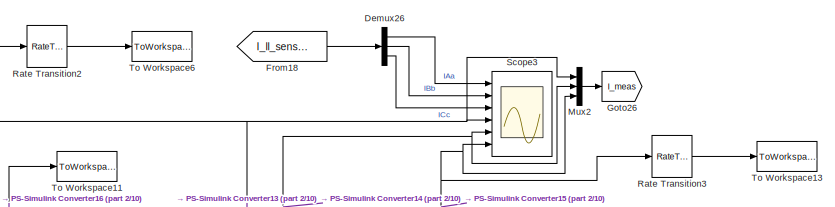
[diagram: root canvas - part 1/10, top right region]
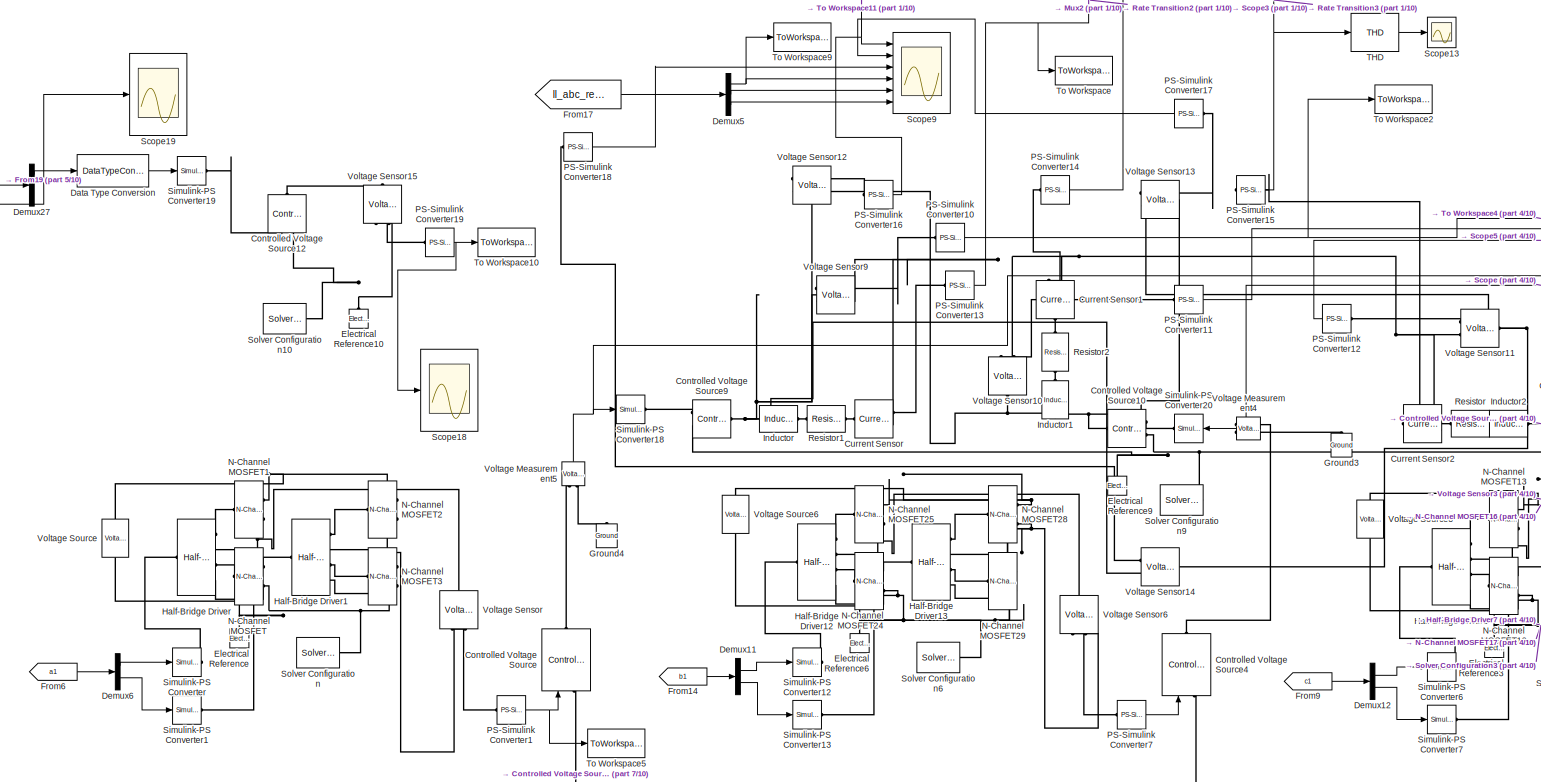
[diagram: root canvas - part 2/10, top right region]
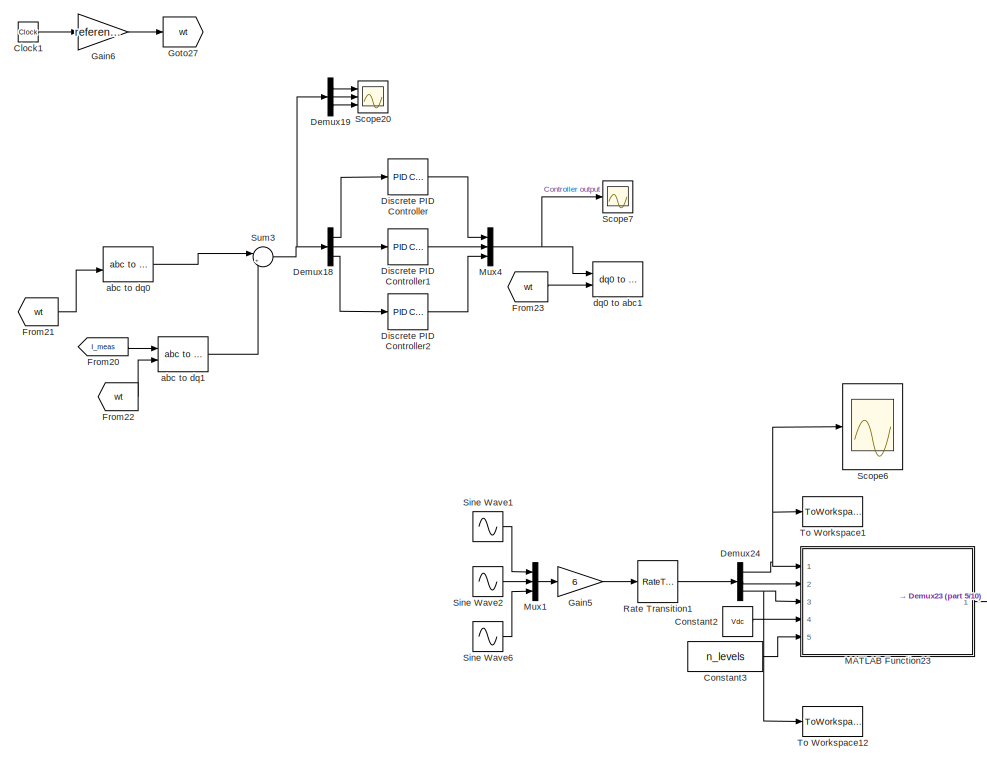
[diagram: root canvas - part 3/10, top left region]
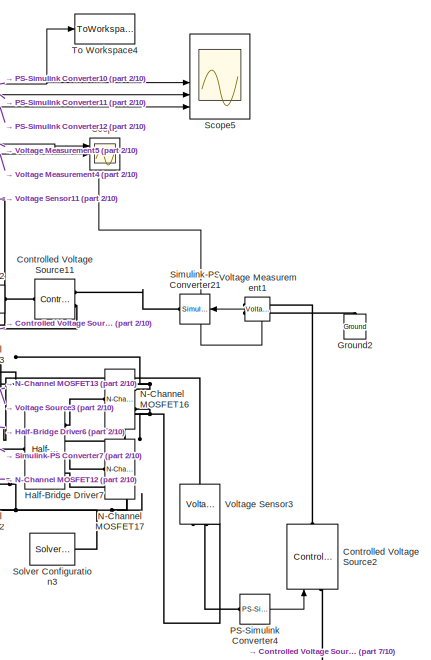
[diagram: root canvas - part 4/10, top right region]
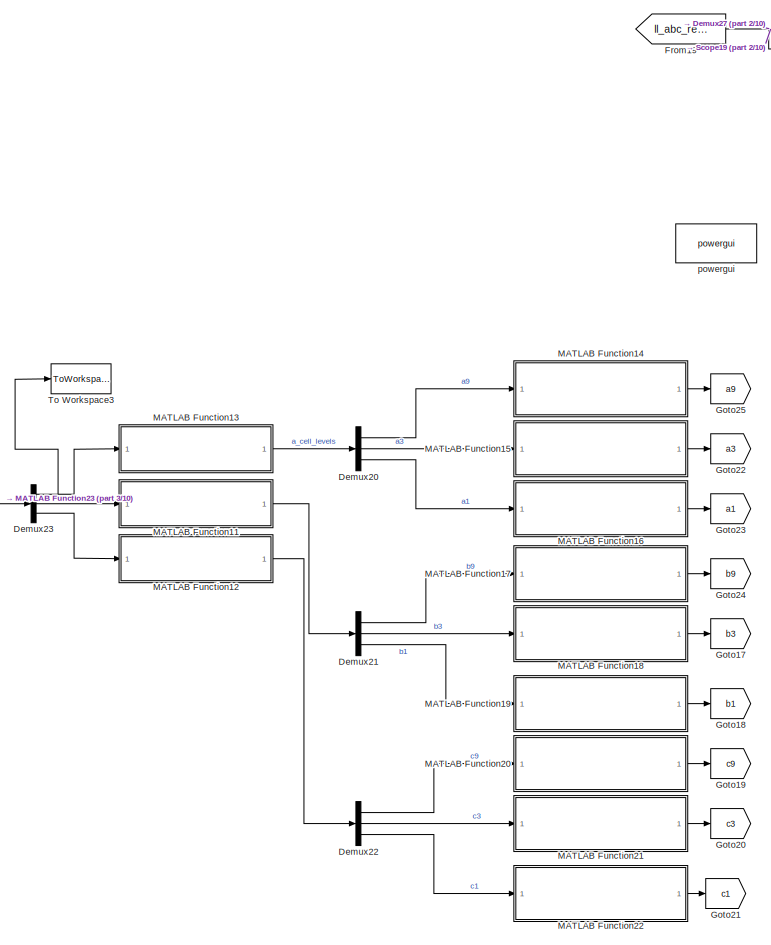
[diagram: root canvas - part 5/10, top center region]
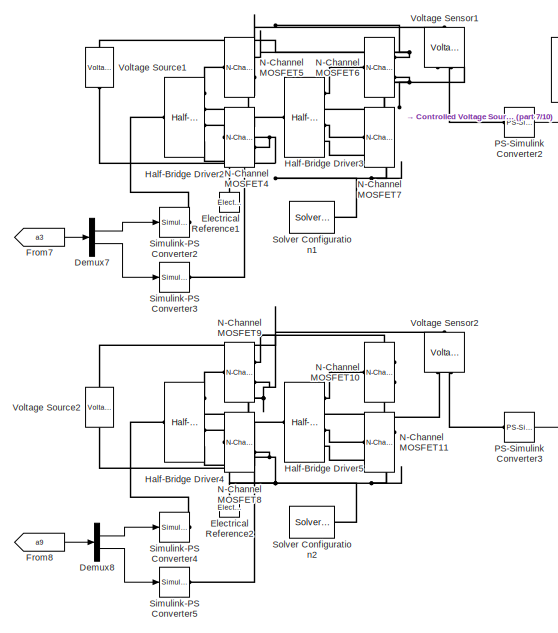
[diagram: root canvas - part 6/10, central region]
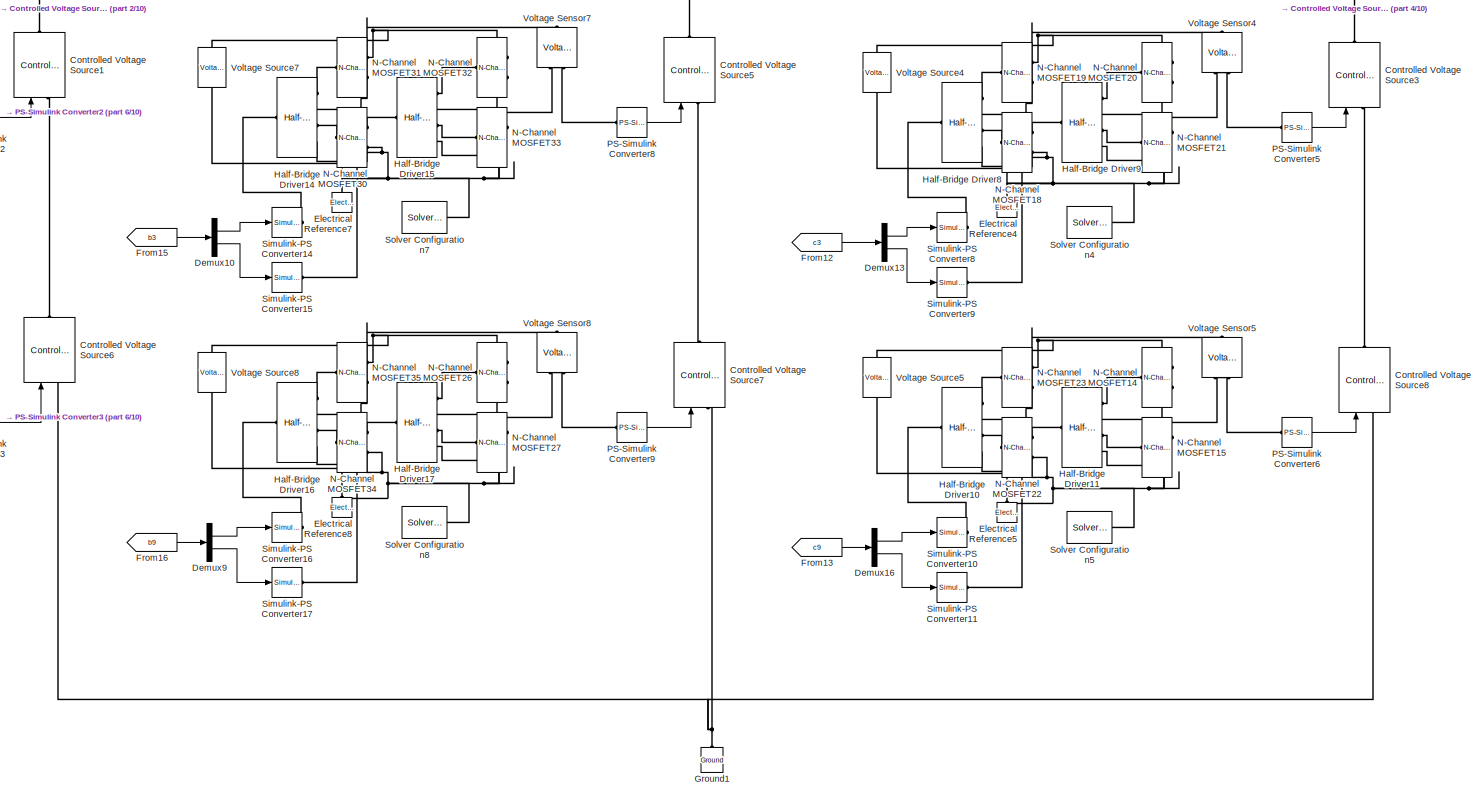
[diagram: root canvas - part 7/10, middle right region]
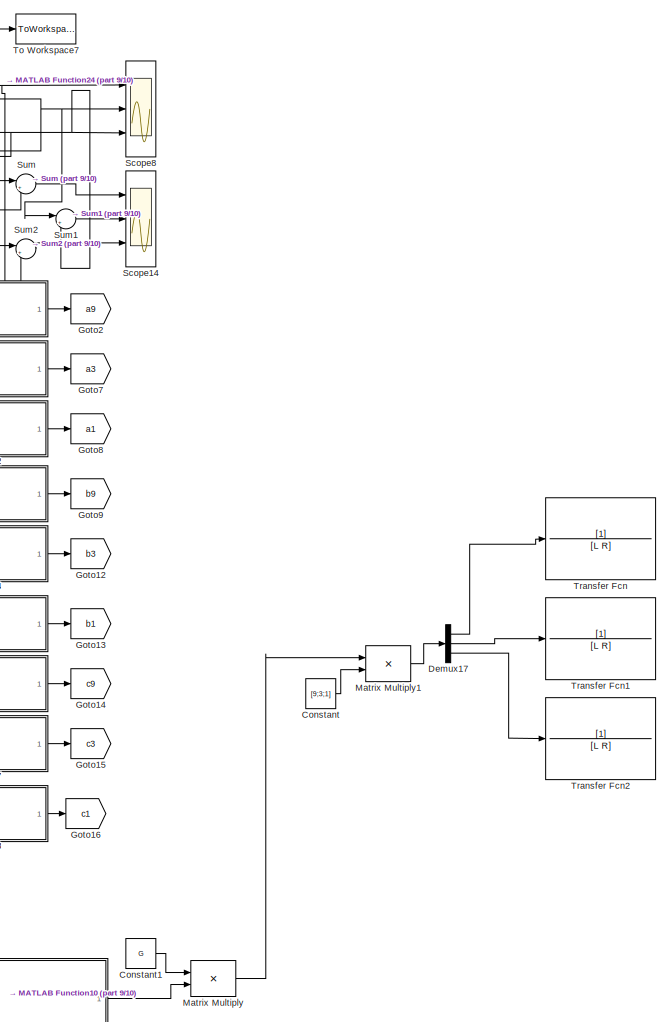
[diagram: root canvas - part 8/10, bottom center region]
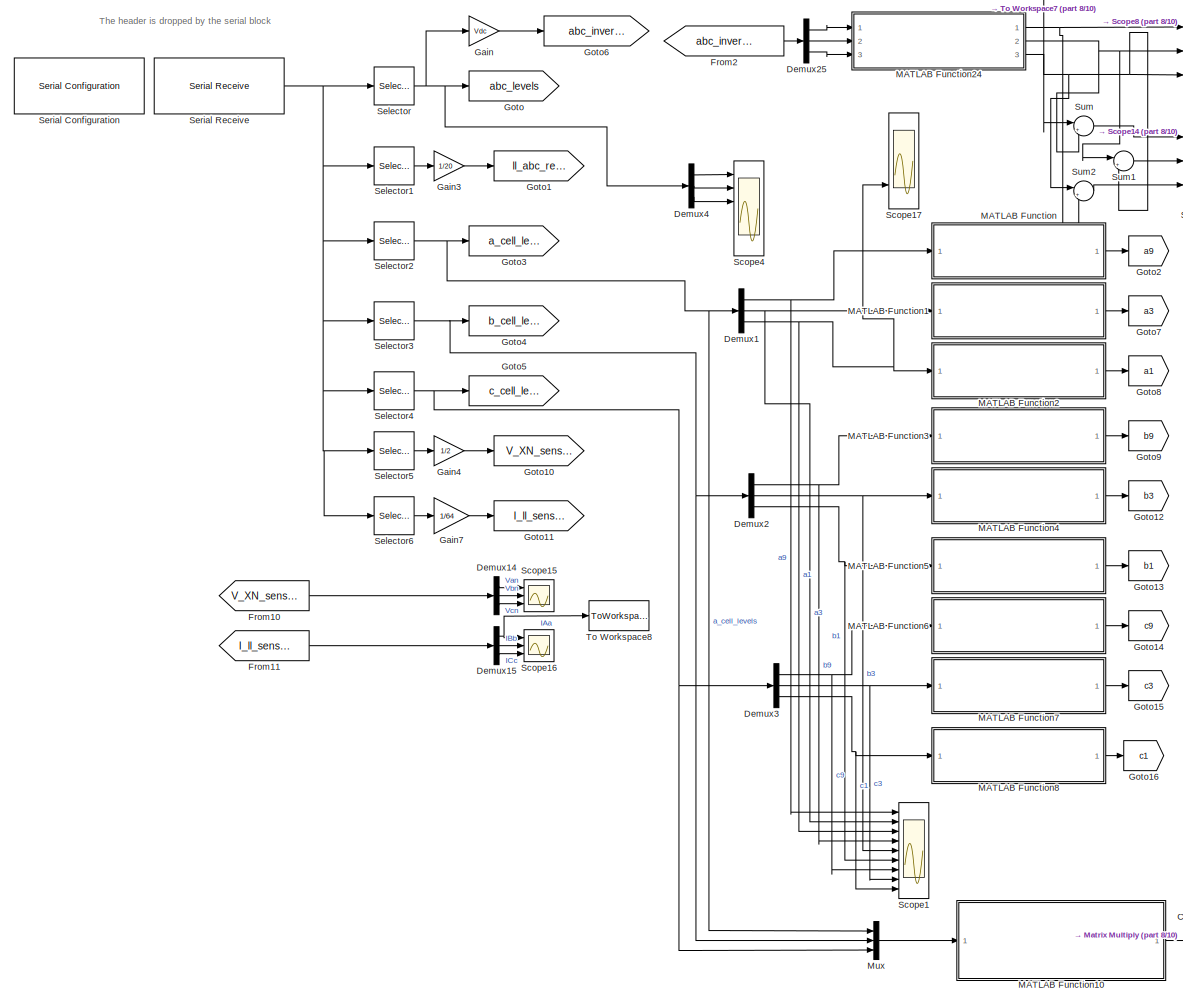
[diagram: root canvas - part 9/10, bottom left region]
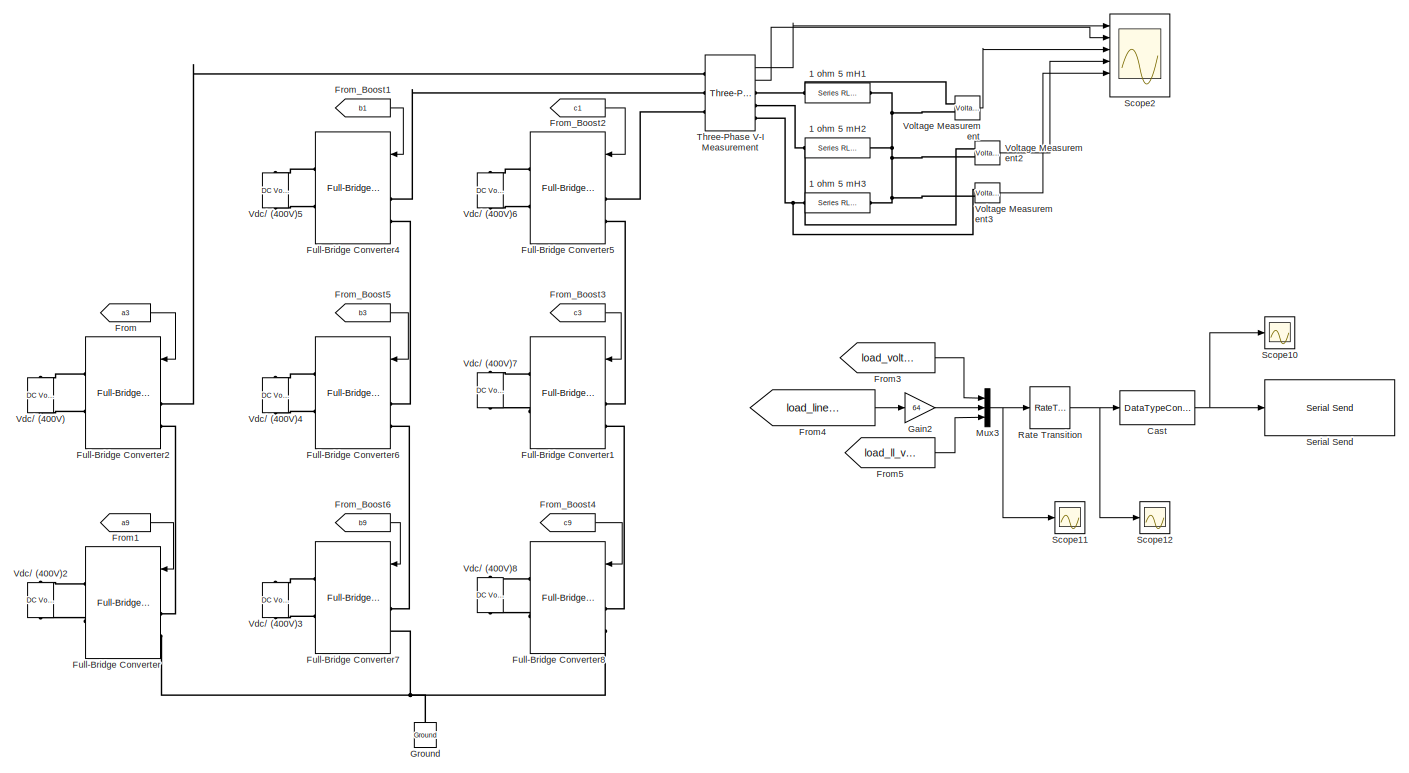
[diagram: root canvas - part 10/10, bottom right region]
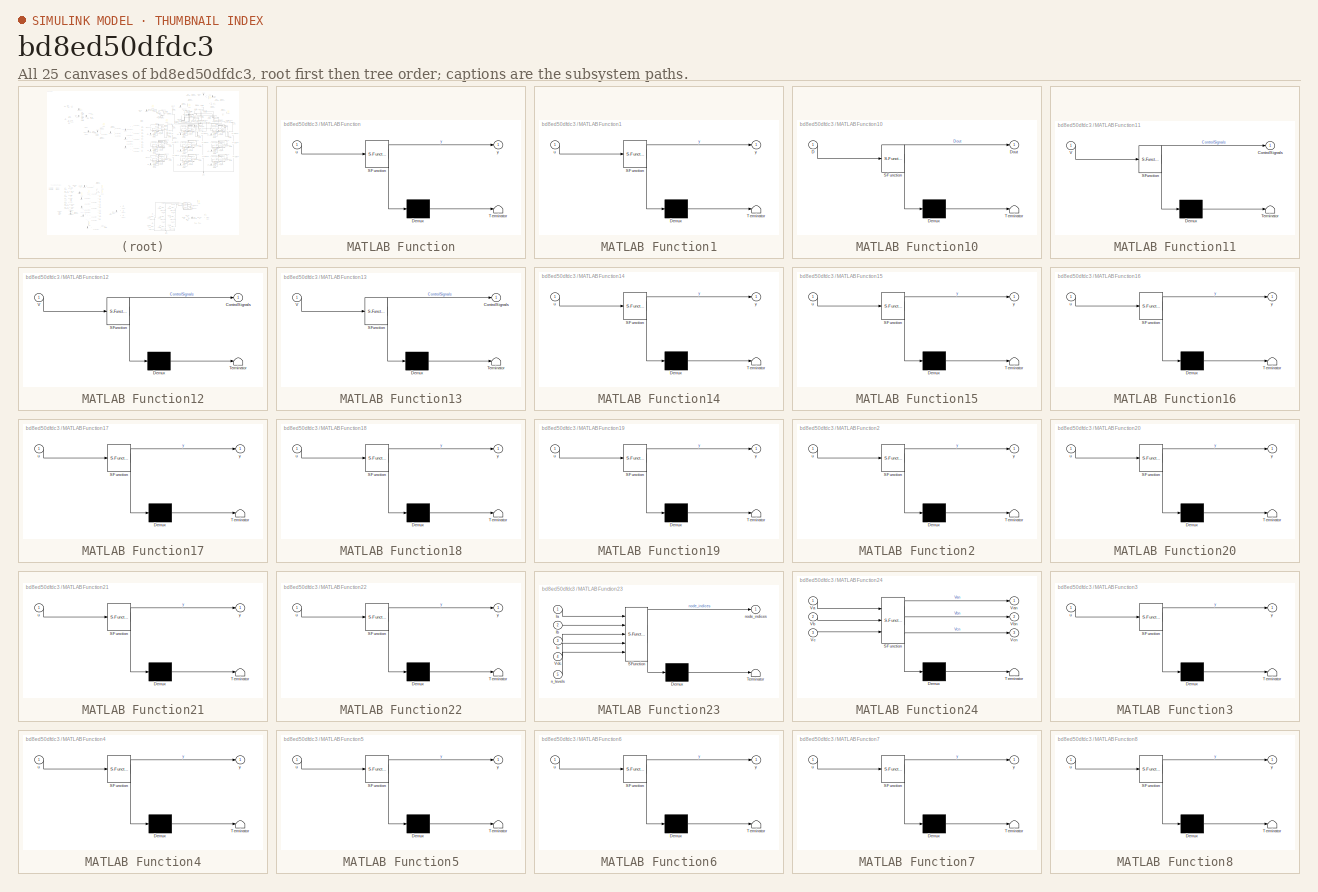
[diagram: thumbnail index - all 25 canvases of the model, root first then tree order]
MODEL slx_bd8ed50dfdc3
KIND model
CONFIG AbsTol = auto
CONFIG EnableMultiTasking = off
CONFIG FixedStep = auto
CONFIG MaxStep = auto
CONFIG MinStep = auto
CONFIG RelTol = 1e-3
CONFIG SampleTimeConstraint = Unconstrained
CONFIG Solver = ode15s
CONFIG SolverName = ode15s
CONFIG StartTime = 0.0
CONFIG StopTime = 1
BLOCK [Reference] 1 ohm 5 mH1  REF=powerlib/Elements/Series RLC Branch
  Commented = on
  Ports = [0, 0, 0, 0, 0, 1, 1]
  SourceBlock = powerlib/Elements/Series RLC Branch
  SourceProductBaseCode = PS
  SourceProductName = Simscape Power Systems
  SourceType = Series RLC Branch
BLOCK [Reference] 1 ohm 5 mH2  REF=powerlib/Elements/Series RLC Branch
  Commented = on
  Ports = [0, 0, 0, 0, 0, 1, 1]
  SourceBlock = powerlib/Elements/Series RLC Branch
  SourceProductBaseCode = PS
  SourceProductName = Simscape Power Systems
  SourceType = Series RLC Branch
BLOCK [Reference] 1 ohm 5 mH3  REF=powerlib/Elements/Series RLC Branch
  Commented = on
  Ports = [0, 0, 0, 0, 0, 1, 1]
  SourceBlock = powerlib/Elements/Series RLC Branch
  SourceProductBaseCode = PS
  SourceProductName = Simscape Power Systems
  SourceType = Series RLC Branch
BLOCK [DataTypeConversion] Cast
  Commented = on
  OutDataTypeStr = int8
  RndMeth = Floor
BLOCK [Clock] Clock1
  Commented = on
BLOCK [Constant] Constant
  Commented = on
  Value = [9;3;1]
BLOCK [Constant] Constant1
  Commented = on
  Value = G
BLOCK [Constant] Constant2
  Value = Vdc
BLOCK [Constant] Constant3
  Value = n_levels
BLOCK [Reference] Controlled Voltage Source  REF=powerlib/Electrical
Sources/Controlled Voltage Source
  Ports = [1, 0, 0, 0, 0, 1, 1]
  SourceBlock = powerlib/Electrical\nSources/Controlled Voltage Source
  SourceProductBaseCode = PS
  SourceProductName = Simscape Power Systems
  SourceType = Controlled Voltage Source
BLOCK [Reference] Controlled Voltage Source1  REF=powerlib/Electrical
Sources/Controlled Voltage Source
  Ports = [1, 0, 0, 0, 0, 1, 1]
  SourceBlock = powerlib/Electrical\nSources/Controlled Voltage Source
  SourceProductBaseCode = PS
  SourceProductName = Simscape Power Systems
  SourceType = Controlled Voltage Source
BLOCK [Reference] Controlled Voltage Source10  REF=fl_lib/Electrical/Electrical Sources/Controlled Voltage
Source
  Ports = [0, 0, 0, 0, 0, 1, 2]
  SourceBlock = fl_lib/Electrical/Electrical Sources/Controlled Voltage\nSource
  SourceProductBaseCode = SS
  SourceProductName = Simscape
  SourceType = Controlled Voltage\nSource
BLOCK [Reference] Controlled Voltage Source11  REF=fl_lib/Electrical/Electrical Sources/Controlled Voltage
Source
  Ports = [0, 0, 0, 0, 0, 1, 2]
  SourceBlock = fl_lib/Electrical/Electrical Sources/Controlled Voltage\nSource
  SourceProductBaseCode = SS
  SourceProductName = Simscape
  SourceType = Controlled Voltage\nSource
BLOCK [Reference] Controlled Voltage Source12  REF=fl_lib/Electrical/Electrical Sources/Controlled Voltage
Source
  Ports = [0, 0, 0, 0, 0, 1, 2]
  SourceBlock = fl_lib/Electrical/Electrical Sources/Controlled Voltage\nSource
  SourceProductBaseCode = SS
  SourceProductName = Simscape
  SourceType = Controlled Voltage\nSource
BLOCK [Reference] Controlled Voltage Source2  REF=powerlib/Electrical
Sources/Controlled Voltage Source
  Ports = [1, 0, 0, 0, 0, 1, 1]
  SourceBlock = powerlib/Electrical\nSources/Controlled Voltage Source
  SourceProductBaseCode = PS
  SourceProductName = Simscape Power Systems
  SourceType = Controlled Voltage Source
BLOCK [Reference] Controlled Voltage Source3  REF=powerlib/Electrical
Sources/Controlled Voltage Source
  Ports = [1, 0, 0, 0, 0, 1, 1]
  SourceBlock = powerlib/Electrical\nSources/Controlled Voltage Source
  SourceProductBaseCode = PS
  SourceProductName = Simscape Power Systems
  SourceType = Controlled Voltage Source
BLOCK [Reference] Controlled Voltage Source4  REF=powerlib/Electrical
Sources/Controlled Voltage Source
  Ports = [1, 0, 0, 0, 0, 1, 1]
  SourceBlock = powerlib/Electrical\nSources/Controlled Voltage Source
  SourceProductBaseCode = PS
  SourceProductName = Simscape Power Systems
  SourceType = Controlled Voltage Source
BLOCK [Reference] Controlled Voltage Source5  REF=powerlib/Electrical
Sources/Controlled Voltage Source
  Ports = [1, 0, 0, 0, 0, 1, 1]
  SourceBlock = powerlib/Electrical\nSources/Controlled Voltage Source
  SourceProductBaseCode = PS
  SourceProductName = Simscape Power Systems
  SourceType = Controlled Voltage Source
BLOCK [Reference] Controlled Voltage Source6  REF=powerlib/Electrical
Sources/Controlled Voltage Source
  Ports = [1, 0, 0, 0, 0, 1, 1]
  SourceBlock = powerlib/Electrical\nSources/Controlled Voltage Source
  SourceProductBaseCode = PS
  SourceProductName = Simscape Power Systems
  SourceType = Controlled Voltage Source
BLOCK [Reference] Controlled Voltage Source7  REF=powerlib/Electrical
Sources/Controlled Voltage Source
  Ports = [1, 0, 0, 0, 0, 1, 1]
  SourceBlock = powerlib/Electrical\nSources/Controlled Voltage Source
  SourceProductBaseCode = PS
  SourceProductName = Simscape Power Systems
  SourceType = Controlled Voltage Source
BLOCK [Reference] Controlled Voltage Source8  REF=powerlib/Electrical
Sources/Controlled Voltage Source
  Ports = [1, 0, 0, 0, 0, 1, 1]
  SourceBlock = powerlib/Electrical\nSources/Controlled Voltage Source
  SourceProductBaseCode = PS
  SourceProductName = Simscape Power Systems
  SourceType = Controlled Voltage Source
BLOCK [Reference] Controlled Voltage Source9  REF=fl_lib/Electrical/Electrical Sources/Controlled Voltage
Source
  Ports = [0, 0, 0, 0, 0, 1, 2]
  SourceBlock = fl_lib/Electrical/Electrical Sources/Controlled Voltage\nSource
  SourceProductBaseCode = SS
  SourceProductName = Simscape
  SourceType = Controlled Voltage\nSource
BLOCK [Reference] Current Sensor  REF=fl_lib/Electrical/Electrical Sensors/Current Sensor
  Ports = [0, 0, 0, 0, 0, 1, 2]
  SourceBlock = fl_lib/Electrical/Electrical Sensors/Current Sensor
  SourceProductBaseCode = SS
  SourceProductName = Simscape
  SourceType = Current Sensor
BLOCK [Reference] Current Sensor1  REF=fl_lib/Electrical/Electrical Sensors/Current Sensor
  Ports = [0, 0, 0, 0, 0, 1, 2]
  SourceBlock = fl_lib/Electrical/Electrical Sensors/Current Sensor
  SourceProductBaseCode = SS
  SourceProductName = Simscape
  SourceType = Current Sensor
BLOCK [Reference] Current Sensor2  REF=fl_lib/Electrical/Electrical Sensors/Current Sensor
  Ports = [0, 0, 0, 0, 0, 1, 2]
  SourceBlock = fl_lib/Electrical/Electrical Sensors/Current Sensor
  SourceProductBaseCode = SS
  SourceProductName = Simscape
  SourceType = Current Sensor
BLOCK [DataTypeConversion] Data Type Conversion
  RndMeth = Floor
  SaturateOnIntegerOverflow = off
BLOCK [Demux] Demux1
  Commented = on
  DisplayOption = bar
  Outputs = 3
  Ports = [1, 3]
BLOCK [Demux] Demux10
  DisplayOption = bar
  Outputs = 2
  Ports = [1, 2]
BLOCK [Demux] Demux11
  DisplayOption = bar
  Outputs = 2
  Ports = [1, 2]
BLOCK [Demux] Demux12
  DisplayOption = bar
  Outputs = 2
  Ports = [1, 2]
BLOCK [Demux] Demux13
  DisplayOption = bar
  Outputs = 2
  Ports = [1, 2]
BLOCK [Demux] Demux14
  Commented = on
  DisplayOption = bar
  Outputs = 3
  Ports = [1, 3]
BLOCK [Demux] Demux15
  Commented = on
  DisplayOption = bar
  Outputs = 3
  Ports = [1, 3]
BLOCK [Demux] Demux16
  DisplayOption = bar
  Outputs = 2
  Ports = [1, 2]
BLOCK [Demux] Demux17
  Commented = on
  DisplayOption = bar
  Outputs = 3
  Ports = [1, 3]
BLOCK [Demux] Demux18
  Commented = on
  DisplayOption = bar
  Outputs = 3
  Ports = [1, 3]
BLOCK [Demux] Demux19
  Commented = on
  DisplayOption = bar
  Outputs = 3
  Ports = [1, 3]
BLOCK [Demux] Demux2
  Commented = on
  DisplayOption = bar
  Outputs = 3
  Ports = [1, 3]
BLOCK [Demux] Demux20
  DisplayOption = bar
  Outputs = 3
  Ports = [1, 3]
BLOCK [Demux] Demux21
  DisplayOption = bar
  Outputs = 3
  Ports = [1, 3]
BLOCK [Demux] Demux22
  DisplayOption = bar
  Outputs = 3
  Ports = [1, 3]
BLOCK [Demux] Demux23
  DisplayOption = bar
  Outputs = 3
  Ports = [1, 3]
BLOCK [Demux] Demux24
  DisplayOption = bar
  Outputs = 3
  Ports = [1, 3]
BLOCK [Demux] Demux25
  Commented = on
  DisplayOption = bar
  Outputs = 3
  Ports = [1, 3]
BLOCK [Demux] Demux26
  DisplayOption = bar
  Outputs = 3
  Ports = [1, 3]
BLOCK [Demux] Demux27
  DisplayOption = bar
  Outputs = 3
  Ports = [1, 3]
BLOCK [Demux] Demux3
  Commented = on
  DisplayOption = bar
  Outputs = 3
  Ports = [1, 3]
BLOCK [Demux] Demux4
  Commented = on
  DisplayOption = bar
  Outputs = 3
  Ports = [1, 3]
BLOCK [Demux] Demux5
  DisplayOption = bar
  Outputs = 3
  Ports = [1, 3]
BLOCK [Demux] Demux6
  DisplayOption = bar
  Outputs = 2
  Ports = [1, 2]
BLOCK [Demux] Demux7
  DisplayOption = bar
  Outputs = 2
  Ports = [1, 2]
BLOCK [Demux] Demux8
  DisplayOption = bar
  Outputs = 2
  Ports = [1, 2]
BLOCK [Demux] Demux9
  DisplayOption = bar
  Outputs = 2
  Ports = [1, 2]
BLOCK [Reference] Discrete PID Controller  REF=simulink/Continuous/PID Controller
  Commented = on
  Ports = [1, 1]
  SourceBlock = simulink/Continuous/PID Controller
  SourceProductBaseCode = SL
  SourceProductName = Simulink
  SourceType = PID 1dof
BLOCK [Reference] Discrete PID Controller1  REF=simulink/Continuous/PID Controller
  Commented = on
  Ports = [1, 1]
  SourceBlock = simulink/Continuous/PID Controller
  SourceProductBaseCode = SL
  SourceProductName = Simulink
  SourceType = PID 1dof
BLOCK [Reference] Discrete PID Controller2  REF=simulink/Continuous/PID Controller
  Commented = on
  Ports = [1, 1]
  SourceBlock = simulink/Continuous/PID Controller
  SourceProductBaseCode = SL
  SourceProductName = Simulink
  SourceType = PID 1dof
BLOCK [Reference] Electrical Reference  REF=fl_lib/Electrical/Electrical Elements/Electrical Reference
  Ports = [0, 0, 0, 0, 0, 1]
  SourceBlock = fl_lib/Electrical/Electrical Elements/Electrical Reference
  SourceProductBaseCode = SS
  SourceProductName = Simscape
  SourceType = Electrical Reference
BLOCK [Reference] Electrical Reference1  REF=fl_lib/Electrical/Electrical Elements/Electrical Reference
  Ports = [0, 0, 0, 0, 0, 1]
  SourceBlock = fl_lib/Electrical/Electrical Elements/Electrical Reference
  SourceProductBaseCode = SS
  SourceProductName = Simscape
  SourceType = Electrical Reference
BLOCK [Reference] Electrical Reference10  REF=fl_lib/Electrical/Electrical Elements/Electrical Reference
  Ports = [0, 0, 0, 0, 0, 1]
  SourceBlock = fl_lib/Electrical/Electrical Elements/Electrical Reference
  SourceProductBaseCode = SS
  SourceProductName = Simscape
  SourceType = Electrical Reference
BLOCK [Reference] Electrical Reference2  REF=fl_lib/Electrical/Electrical Elements/Electrical Reference
  Ports = [0, 0, 0, 0, 0, 1]
  SourceBlock = fl_lib/Electrical/Electrical Elements/Electrical Reference
  SourceProductBaseCode = SS
  SourceProductName = Simscape
  SourceType = Electrical Reference
BLOCK [Reference] Electrical Reference3  REF=fl_lib/Electrical/Electrical Elements/Electrical Reference
  Ports = [0, 0, 0, 0, 0, 1]
  SourceBlock = fl_lib/Electrical/Electrical Elements/Electrical Reference
  SourceProductBaseCode = SS
  SourceProductName = Simscape
  SourceType = Electrical Reference
BLOCK [Reference] Electrical Reference4  REF=fl_lib/Electrical/Electrical Elements/Electrical Reference
  Ports = [0, 0, 0, 0, 0, 1]
  SourceBlock = fl_lib/Electrical/Electrical Elements/Electrical Reference
  SourceProductBaseCode = SS
  SourceProductName = Simscape
  SourceType = Electrical Reference
BLOCK [Reference] Electrical Reference5  REF=fl_lib/Electrical/Electrical Elements/Electrical Reference
  Ports = [0, 0, 0, 0, 0, 1]
  SourceBlock = fl_lib/Electrical/Electrical Elements/Electrical Reference
  SourceProductBaseCode = SS
  SourceProductName = Simscape
  SourceType = Electrical Reference
BLOCK [Reference] Electrical Reference6  REF=fl_lib/Electrical/Electrical Elements/Electrical Reference
  Ports = [0, 0, 0, 0, 0, 1]
  SourceBlock = fl_lib/Electrical/Electrical Elements/Electrical Reference
  SourceProductBaseCode = SS
  SourceProductName = Simscape
  SourceType = Electrical Reference
BLOCK [Reference] Electrical Reference7  REF=fl_lib/Electrical/Electrical Elements/Electrical Reference
  Ports = [0, 0, 0, 0, 0, 1]
  SourceBlock = fl_lib/Electrical/Electrical Elements/Electrical Reference
  SourceProductBaseCode = SS
  SourceProductName = Simscape
  SourceType = Electrical Reference
BLOCK [Reference] Electrical Reference8  REF=fl_lib/Electrical/Electrical Elements/Electrical Reference
  Ports = [0, 0, 0, 0, 0, 1]
  SourceBlock = fl_lib/Electrical/Electrical Elements/Electrical Reference
  SourceProductBaseCode = SS
  SourceProductName = Simscape
  SourceType = Electrical Reference
BLOCK [Reference] Electrical Reference9  REF=fl_lib/Electrical/Electrical Elements/Electrical Reference
  Ports = [0, 0, 0, 0, 0, 1]
  SourceBlock = fl_lib/Electrical/Electrical Elements/Electrical Reference
  SourceProductBaseCode = SS
  SourceProductName = Simscape
  SourceType = Electrical Reference
BLOCK [From] From
  Commented = on
  GotoTag = a3
BLOCK [From] From1
  Commented = on
  GotoTag = a9
BLOCK [From] From10
  Commented = on
  GotoTag = V_XN_sensed
BLOCK [From] From11
  Commented = on
  GotoTag = I_ll_sensed
BLOCK [From] From12
  GotoTag = c3
BLOCK [From] From13
  GotoTag = c9
BLOCK [From] From14
  GotoTag = b1
BLOCK [From] From15
  GotoTag = b3
BLOCK [From] From16
  GotoTag = b9
BLOCK [From] From17
  GotoTag = ll_abc_reference
BLOCK [From] From18
  GotoTag = I_ll_sensed
BLOCK [From] From19
  GotoTag = ll_abc_reference
BLOCK [From] From2
  Commented = on
  GotoTag = abc_inverter_voltage
BLOCK [From] From20
  Commented = on
  GotoTag = I_meas
BLOCK [From] From21
  Commented = on
  GotoTag = wt
BLOCK [From] From22
  Commented = on
  GotoTag = wt
BLOCK [From] From23
  Commented = on
  GotoTag = wt
BLOCK [From] From3
  Commented = on
  GotoTag = load_voltage
BLOCK [From] From4
  Commented = on
  GotoTag = load_line_current
BLOCK [From] From5
  Commented = on
  GotoTag = load_ll_voltage
BLOCK [From] From6
  GotoTag = a1
BLOCK [From] From7
  GotoTag = a3
BLOCK [From] From8
  GotoTag = a9
BLOCK [From] From9
  GotoTag = c1
BLOCK [From] From_Boost1
  Commented = on
  GotoTag = b1
BLOCK [From] From_Boost2
  Commented = on
  GotoTag = c1
BLOCK [From] From_Boost3
  Commented = on
  GotoTag = c3
BLOCK [From] From_Boost4
  Commented = on
  GotoTag = c9
BLOCK [From] From_Boost5
  Commented = on
  GotoTag = b3
BLOCK [From] From_Boost6
  Commented = on
  GotoTag = b9
BLOCK [Reference] Full-Bridge Converter  REF=powerlib/Power
Electronics/Full-Bridge Converter
  AttributesFormatString = %<ModelType>
  Commented = on
  Ports = [2, 0, 0, 0, 0, 2, 2]
  SourceBlock = powerlib/Power\nElectronics/Full-Bridge Converter
  SourceProductBaseCode = PS
  SourceProductName = Simscape Power Systems
  SourceType = Full-Bridge Converter
BLOCK [Reference] Full-Bridge Converter1  REF=powerlib/Power
Electronics/Full-Bridge Converter
  AttributesFormatString = %<ModelType>
  Commented = on
  Ports = [2, 0, 0, 0, 0, 2, 2]
  SourceBlock = powerlib/Power\nElectronics/Full-Bridge Converter
  SourceProductBaseCode = PS
  SourceProductName = Simscape Power Systems
  SourceType = Full-Bridge Converter
BLOCK [Reference] Full-Bridge Converter2  REF=powerlib/Power
Electronics/Full-Bridge Converter
  AttributesFormatString = %<ModelType>
  Commented = on
  Ports = [2, 0, 0, 0, 0, 2, 2]
  SourceBlock = powerlib/Power\nElectronics/Full-Bridge Converter
  SourceProductBaseCode = PS
  SourceProductName = Simscape Power Systems
  SourceType = Full-Bridge Converter
BLOCK [Reference] Full-Bridge Converter4  REF=powerlib/Power
Electronics/Full-Bridge Converter
  AttributesFormatString = %<ModelType>
  Commented = on
  Ports = [2, 0, 0, 0, 0, 2, 2]
  SourceBlock = powerlib/Power\nElectronics/Full-Bridge Converter
  SourceProductBaseCode = PS
  SourceProductName = Simscape Power Systems
  SourceType = Full-Bridge Converter
BLOCK [Reference] Full-Bridge Converter5  REF=powerlib/Power
Electronics/Full-Bridge Converter
  AttributesFormatString = %<ModelType>
  Commented = on
  Ports = [2, 0, 0, 0, 0, 2, 2]
  SourceBlock = powerlib/Power\nElectronics/Full-Bridge Converter
  SourceProductBaseCode = PS
  SourceProductName = Simscape Power Systems
  SourceType = Full-Bridge Converter
BLOCK [Reference] Full-Bridge Converter6  REF=powerlib/Power
Electronics/Full-Bridge Converter
  AttributesFormatString = %<ModelType>
  Commented = on
  Ports = [2, 0, 0, 0, 0, 2, 2]
  SourceBlock = powerlib/Power\nElectronics/Full-Bridge Converter
  SourceProductBaseCode = PS
  SourceProductName = Simscape Power Systems
  SourceType = Full-Bridge Converter
BLOCK [Reference] Full-Bridge Converter7  REF=powerlib/Power
Electronics/Full-Bridge Converter
  AttributesFormatString = %<ModelType>
  Commented = on
  Ports = [2, 0, 0, 0, 0, 2, 2]
  SourceBlock = powerlib/Power\nElectronics/Full-Bridge Converter
  SourceProductBaseCode = PS
  SourceProductName = Simscape Power Systems
  SourceType = Full-Bridge Converter
BLOCK [Reference] Full-Bridge Converter8  REF=powerlib/Power
Electronics/Full-Bridge Converter
  AttributesFormatString = %<ModelType>
  Commented = on
  Ports = [2, 0, 0, 0, 0, 2, 2]
  SourceBlock = powerlib/Power\nElectronics/Full-Bridge Converter
  SourceProductBaseCode = PS
  SourceProductName = Simscape Power Systems
  SourceType = Full-Bridge Converter
BLOCK [Gain] Gain
  Commented = on
  Gain = Vdc
  OutDataTypeStr = Inherit: Inherit via internal rule
  ParamDataTypeStr = Inherit: Inherit via internal rule
  SaturateOnIntegerOverflow = off
BLOCK [Gain] Gain2
  Commented = on
  Gain = 64
  OutDataTypeStr = Inherit: Inherit via internal rule
  ParamDataTypeStr = Inherit: Inherit via internal rule
  SaturateOnIntegerOverflow = off
BLOCK [Gain] Gain3
  Commented = on
  Gain = 1/20
  OutDataTypeStr = Inherit: Inherit via internal rule
  ParamDataTypeStr = Inherit: Inherit via internal rule
  SaturateOnIntegerOverflow = off
BLOCK [Gain] Gain4
  Commented = on
  Gain = 1/2
  OutDataTypeStr = Inherit: Inherit via internal rule
  ParamDataTypeStr = Inherit: Inherit via internal rule
  SaturateOnIntegerOverflow = off
BLOCK [Gain] Gain5
  Gain = 6
  OutDataTypeStr = Inherit: Inherit via internal rule
  ParamDataTypeStr = Inherit: Inherit via internal rule
  SaturateOnIntegerOverflow = off
BLOCK [Gain] Gain6
  Commented = on
  Gain = reference_frequency_hz * 2 * pi
  OutDataTypeStr = Inherit: Inherit via internal rule
  ParamDataTypeStr = Inherit: Inherit via internal rule
  SaturateOnIntegerOverflow = off
BLOCK [Gain] Gain7
  Commented = on
  Gain = 1/64
  OutDataTypeStr = Inherit: Inherit via internal rule
  ParamDataTypeStr = Inherit: Inherit via internal rule
  SaturateOnIntegerOverflow = off
BLOCK [Goto] Goto
  Commented = on
  GotoTag = abc_levels
BLOCK [Goto] Goto1
  Commented = on
  GotoTag = ll_abc_reference
BLOCK [Goto] Goto10
  Commented = on
  GotoTag = V_XN_sensed
BLOCK [Goto] Goto11
  Commented = on
  GotoTag = I_ll_sensed
BLOCK [Goto] Goto12
  Commented = on
  GotoTag = b3
BLOCK [Goto] Goto13
  Commented = on
  GotoTag = b1
BLOCK [Goto] Goto14
  Commented = on
  GotoTag = c9
BLOCK [Goto] Goto15
  Commented = on
  GotoTag = c3
BLOCK [Goto] Goto16
  Commented = on
  GotoTag = c1
BLOCK [Goto] Goto17
  GotoTag = b3
BLOCK [Goto] Goto18
  GotoTag = b1
BLOCK [Goto] Goto19
  GotoTag = c9
BLOCK [Goto] Goto2
  Commented = on
  GotoTag = a9
BLOCK [Goto] Goto20
  GotoTag = c3
BLOCK [Goto] Goto21
  GotoTag = c1
BLOCK [Goto] Goto22
  GotoTag = a3
BLOCK [Goto] Goto23
  GotoTag = a1
BLOCK [Goto] Goto24
  GotoTag = b9
BLOCK [Goto] Goto25
  GotoTag = a9
BLOCK [Goto] Goto26
  GotoTag = I_meas
BLOCK [Goto] Goto27
  Commented = on
  GotoTag = wt
BLOCK [Goto] Goto3
  Commented = on
  GotoTag = a_cell_levels
BLOCK [Goto] Goto4
  Commented = on
  GotoTag = b_cell_levels
BLOCK [Goto] Goto5
  Commented = on
  GotoTag = c_cell_levels
BLOCK [Goto] Goto6
  Commented = on
  GotoTag = abc_inverter_voltage
BLOCK [Goto] Goto7
  Commented = on
  GotoTag = a3
BLOCK [Goto] Goto8
  Commented = on
  GotoTag = a1
BLOCK [Goto] Goto9
  Commented = on
  GotoTag = b9
BLOCK [Reference] Ground  REF=powerlib/Elements/Ground
  Commented = on
  Ports = [0, 0, 0, 0, 0, 1]
  SourceBlock = powerlib/Elements/Ground
  SourceProductBaseCode = PS
  SourceProductName = Simscape Power Systems
  SourceType = Ground
BLOCK [Reference] Ground1  REF=powerlib/Elements/Ground
  Ports = [0, 0, 0, 0, 0, 1]
  SourceBlock = powerlib/Elements/Ground
  SourceProductBaseCode = PS
  SourceProductName = Simscape Power Systems
  SourceType = Ground
BLOCK [Reference] Ground2  REF=powerlib/Elements/Ground
  Ports = [0, 0, 0, 0, 0, 1]
  SourceBlock = powerlib/Elements/Ground
  SourceProductBaseCode = PS
  SourceProductName = Simscape Power Systems
  SourceType = Ground
BLOCK [Reference] Ground3  REF=powerlib/Elements/Ground
  Ports = [0, 0, 0, 0, 0, 1]
  SourceBlock = powerlib/Elements/Ground
  SourceProductBaseCode = PS
  SourceProductName = Simscape Power Systems
  SourceType = Ground
BLOCK [Reference] Ground4  REF=powerlib/Elements/Ground
  Ports = [0, 0, 0, 0, 0, 1]
  SourceBlock = powerlib/Elements/Ground
  SourceProductBaseCode = PS
  SourceProductName = Simscape Power Systems
  SourceType = Ground
BLOCK [Reference] Half-Bridge Driver  REF=elec_lib/Actuators & Drivers/Drivers/Half-Bridge Driver
  Ports = [0, 0, 0, 0, 0, 1, 4]
  SourceBlock = elec_lib/Actuators & Drivers/Drivers/Half-Bridge Driver
  SourceProductBaseCode = SN
  SourceProductName = Simscape Electronics
  SourceType = Half-Bridge Driver
BLOCK [Reference] Half-Bridge Driver1  REF=elec_lib/Actuators & Drivers/Drivers/Half-Bridge Driver
  Ports = [0, 0, 0, 0, 0, 1, 4]
  SourceBlock = elec_lib/Actuators & Drivers/Drivers/Half-Bridge Driver
  SourceProductBaseCode = SN
  SourceProductName = Simscape Electronics
  SourceType = Half-Bridge Driver
BLOCK [Reference] Half-Bridge Driver10  REF=elec_lib/Actuators & Drivers/Drivers/Half-Bridge Driver
  Ports = [0, 0, 0, 0, 0, 1, 4]
  SourceBlock = elec_lib/Actuators & Drivers/Drivers/Half-Bridge Driver
  SourceProductBaseCode = SN
  SourceProductName = Simscape Electronics
  SourceType = Half-Bridge Driver
BLOCK [Reference] Half-Bridge Driver11  REF=elec_lib/Actuators & Drivers/Drivers/Half-Bridge Driver
  Ports = [0, 0, 0, 0, 0, 1, 4]
  SourceBlock = elec_lib/Actuators & Drivers/Drivers/Half-Bridge Driver
  SourceProductBaseCode = SN
  SourceProductName = Simscape Electronics
  SourceType = Half-Bridge Driver
BLOCK [Reference] Half-Bridge Driver12  REF=elec_lib/Actuators & Drivers/Drivers/Half-Bridge Driver
  Ports = [0, 0, 0, 0, 0, 1, 4]
  SourceBlock = elec_lib/Actuators & Drivers/Drivers/Half-Bridge Driver
  SourceProductBaseCode = SN
  SourceProductName = Simscape Electronics
  SourceType = Half-Bridge Driver
BLOCK [Reference] Half-Bridge Driver13  REF=elec_lib/Actuators & Drivers/Drivers/Half-Bridge Driver
  Ports = [0, 0, 0, 0, 0, 1, 4]
  SourceBlock = elec_lib/Actuators & Drivers/Drivers/Half-Bridge Driver
  SourceProductBaseCode = SN
  SourceProductName = Simscape Electronics
  SourceType = Half-Bridge Driver
BLOCK [Reference] Half-Bridge Driver14  REF=elec_lib/Actuators & Drivers/Drivers/Half-Bridge Driver
  Ports = [0, 0, 0, 0, 0, 1, 4]
  SourceBlock = elec_lib/Actuators & Drivers/Drivers/Half-Bridge Driver
  SourceProductBaseCode = SN
  SourceProductName = Simscape Electronics
  SourceType = Half-Bridge Driver
BLOCK [Reference] Half-Bridge Driver15  REF=elec_lib/Actuators & Drivers/Drivers/Half-Bridge Driver
  Ports = [0, 0, 0, 0, 0, 1, 4]
  SourceBlock = elec_lib/Actuators & Drivers/Drivers/Half-Bridge Driver
  SourceProductBaseCode = SN
  SourceProductName = Simscape Electronics
  SourceType = Half-Bridge Driver
BLOCK [Reference] Half-Bridge Driver16  REF=elec_lib/Actuators & Drivers/Drivers/Half-Bridge Driver
  Ports = [0, 0, 0, 0, 0, 1, 4]
  SourceBlock = elec_lib/Actuators & Drivers/Drivers/Half-Bridge Driver
  SourceProductBaseCode = SN
  SourceProductName = Simscape Electronics
  SourceType = Half-Bridge Driver
BLOCK [Reference] Half-Bridge Driver17  REF=elec_lib/Actuators & Drivers/Drivers/Half-Bridge Driver
  Ports = [0, 0, 0, 0, 0, 1, 4]
  SourceBlock = elec_lib/Actuators & Drivers/Drivers/Half-Bridge Driver
  SourceProductBaseCode = SN
  SourceProductName = Simscape Electronics
  SourceType = Half-Bridge Driver
BLOCK [Reference] Half-Bridge Driver2  REF=elec_lib/Actuators & Drivers/Drivers/Half-Bridge Driver
  Ports = [0, 0, 0, 0, 0, 1, 4]
  SourceBlock = elec_lib/Actuators & Drivers/Drivers/Half-Bridge Driver
  SourceProductBaseCode = SN
  SourceProductName = Simscape Electronics
  SourceType = Half-Bridge Driver
BLOCK [Reference] Half-Bridge Driver3  REF=elec_lib/Actuators & Drivers/Drivers/Half-Bridge Driver
  Ports = [0, 0, 0, 0, 0, 1, 4]
  SourceBlock = elec_lib/Actuators & Drivers/Drivers/Half-Bridge Driver
  SourceProductBaseCode = SN
  SourceProductName = Simscape Electronics
  SourceType = Half-Bridge Driver
BLOCK [Reference] Half-Bridge Driver4  REF=elec_lib/Actuators & Drivers/Drivers/Half-Bridge Driver
  Ports = [0, 0, 0, 0, 0, 1, 4]
  SourceBlock = elec_lib/Actuators & Drivers/Drivers/Half-Bridge Driver
  SourceProductBaseCode = SN
  SourceProductName = Simscape Electronics
  SourceType = Half-Bridge Driver
BLOCK [Reference] Half-Bridge Driver5  REF=elec_lib/Actuators & Drivers/Drivers/Half-Bridge Driver
  Ports = [0, 0, 0, 0, 0, 1, 4]
  SourceBlock = elec_lib/Actuators & Drivers/Drivers/Half-Bridge Driver
  SourceProductBaseCode = SN
  SourceProductName = Simscape Electronics
  SourceType = Half-Bridge Driver
BLOCK [Reference] Half-Bridge Driver6  REF=elec_lib/Actuators & Drivers/Drivers/Half-Bridge Driver
  Ports = [0, 0, 0, 0, 0, 1, 4]
  SourceBlock = elec_lib/Actuators & Drivers/Drivers/Half-Bridge Driver
  SourceProductBaseCode = SN
  SourceProductName = Simscape Electronics
  SourceType = Half-Bridge Driver
BLOCK [Reference] Half-Bridge Driver7  REF=elec_lib/Actuators & Drivers/Drivers/Half-Bridge Driver
  Ports = [0, 0, 0, 0, 0, 1, 4]
  SourceBlock = elec_lib/Actuators & Drivers/Drivers/Half-Bridge Driver
  SourceProductBaseCode = SN
  SourceProductName = Simscape Electronics
  SourceType = Half-Bridge Driver
BLOCK [Reference] Half-Bridge Driver8  REF=elec_lib/Actuators & Drivers/Drivers/Half-Bridge Driver
  Ports = [0, 0, 0, 0, 0, 1, 4]
  SourceBlock = elec_lib/Actuators & Drivers/Drivers/Half-Bridge Driver
  SourceProductBaseCode = SN
  SourceProductName = Simscape Electronics
  SourceType = Half-Bridge Driver
BLOCK [Reference] Half-Bridge Driver9  REF=elec_lib/Actuators & Drivers/Drivers/Half-Bridge Driver
  Ports = [0, 0, 0, 0, 0, 1, 4]
  SourceBlock = elec_lib/Actuators & Drivers/Drivers/Half-Bridge Driver
  SourceProductBaseCode = SN
  SourceProductName = Simscape Electronics
  SourceType = Half-Bridge Driver
BLOCK [Reference] Inductor  REF=fl_lib/Electrical/Electrical Elements/Inductor
  Ports = [0, 0, 0, 0, 0, 1, 1]
  SourceBlock = fl_lib/Electrical/Electrical Elements/Inductor
  SourceProductBaseCode = SS
  SourceProductName = Simscape
  SourceType = Inductor
BLOCK [Reference] Inductor1  REF=fl_lib/Electrical/Electrical Elements/Inductor
  Ports = [0, 0, 0, 0, 0, 1, 1]
  SourceBlock = fl_lib/Electrical/Electrical Elements/Inductor
  SourceProductBaseCode = SS
  SourceProductName = Simscape
  SourceType = Inductor
BLOCK [Reference] Inductor2  REF=fl_lib/Electrical/Electrical Elements/Inductor
  Ports = [0, 0, 0, 0, 0, 1, 1]
  SourceBlock = fl_lib/Electrical/Electrical Elements/Inductor
  SourceProductBaseCode = SS
  SourceProductName = Simscape
  SourceType = Inductor
BLOCK [SubSystem] MATLAB Function
  Commented = on
  ErrorFcn = Stateflow.Translate.translate
  PermitHierarchicalResolution = ExplicitOnly
  Ports = [1, 1]
  RequestExecContextInheritance = off
  SFBlockType = MATLAB Function
  TreatAsAtomicUnit = on
BLOCK [Demux] MATLAB Function/ Demux 
  Outputs = 1
  Ports = [1, 1]
BLOCK [S-Function] MATLAB Function/ SFunction 
  EnableBusSupport = on
  FunctionName = sf_sfun
  PortCounts = [1 2]
  Ports = [1, 2]
  SFcnIsStateOwnerBlock = off
  SFunctionDeploymentMode = off
  Tag = Stateflow S-Function MSP_CurrentControl 2
BLOCK [Terminator] MATLAB Function/ Terminator 
BLOCK [Inport] MATLAB Function/u
  IconDisplay = Port number
BLOCK [Outport] MATLAB Function/y
  IconDisplay = Port number
BLOCK [SubSystem] MATLAB Function1
  Commented = on
  ErrorFcn = Stateflow.Translate.translate
  PermitHierarchicalResolution = ExplicitOnly
  Ports = [1, 1]
  RequestExecContextInheritance = off
  SFBlockType = MATLAB Function
  TreatAsAtomicUnit = on
BLOCK [Demux] MATLAB Function1/ Demux 
  Outputs = 1
  Ports = [1, 1]
BLOCK [S-Function] MATLAB Function1/ SFunction 
  EnableBusSupport = on
  FunctionName = sf_sfun
  PortCounts = [1 2]
  Ports = [1, 2]
  SFcnIsStateOwnerBlock = off
  SFunctionDeploymentMode = off
  Tag = Stateflow S-Function MSP_CurrentControl 1
BLOCK [Terminator] MATLAB Function1/ Terminator 
BLOCK [Inport] MATLAB Function1/u
  IconDisplay = Port number
BLOCK [Outport] MATLAB Function1/y
  IconDisplay = Port number
BLOCK [SubSystem] MATLAB Function10
  Commented = on
  ErrorFcn = Stateflow.Translate.translate
  PermitHierarchicalResolution = ExplicitOnly
  Ports = [1, 1]
  RequestExecContextInheritance = off
  SFBlockType = MATLAB Function
  TreatAsAtomicUnit = on
BLOCK [Demux] MATLAB Function10/ Demux 
  Outputs = 1
  Ports = [1, 1]
BLOCK [S-Function] MATLAB Function10/ SFunction 
  EnableBusSupport = on
  FunctionName = sf_sfun
  PortCounts = [1 2]
  Ports = [1, 2]
  SFcnIsStateOwnerBlock = off
  SFunctionDeploymentMode = off
  Tag = Stateflow S-Function MSP_CurrentControl 11
BLOCK [Terminator] MATLAB Function10/ Terminator 
BLOCK [Inport] MATLAB Function10/D
  IconDisplay = Port number
BLOCK [Outport] MATLAB Function10/Dout
  IconDisplay = Port number
BLOCK [SubSystem] MATLAB Function11
  ErrorFcn = Stateflow.Translate.translate
  PermitHierarchicalResolution = ExplicitOnly
  Ports = [1, 1]
  RequestExecContextInheritance = off
  SFBlockType = MATLAB Function
  TreatAsAtomicUnit = on
BLOCK [Demux] MATLAB Function11/ Demux 
  Outputs = 1
  Ports = [1, 1]
BLOCK [S-Function] MATLAB Function11/ SFunction 
  EnableBusSupport = on
  FunctionName = sf_sfun
  PortCounts = [1 2]
  Ports = [1, 2]
  SFcnIsStateOwnerBlock = off
  SFunctionDeploymentMode = off
  Tag = Stateflow S-Function MSP_CurrentControl 12
BLOCK [Terminator] MATLAB Function11/ Terminator 
BLOCK [Outport] MATLAB Function11/ControlSignals
  IconDisplay = Port number
BLOCK [Inport] MATLAB Function11/V
  IconDisplay = Port number
BLOCK [SubSystem] MATLAB Function12
  ErrorFcn = Stateflow.Translate.translate
  PermitHierarchicalResolution = ExplicitOnly
  Ports = [1, 1]
  RequestExecContextInheritance = off
  SFBlockType = MATLAB Function
  TreatAsAtomicUnit = on
BLOCK [Demux] MATLAB Function12/ Demux 
  Outputs = 1
  Ports = [1, 1]
BLOCK [S-Function] MATLAB Function12/ SFunction 
  EnableBusSupport = on
  FunctionName = sf_sfun
  PortCounts = [1 2]
  Ports = [1, 2]
  SFcnIsStateOwnerBlock = off
  SFunctionDeploymentMode = off
  Tag = Stateflow S-Function MSP_CurrentControl 13
BLOCK [Terminator] MATLAB Function12/ Terminator 
BLOCK [Outport] MATLAB Function12/ControlSignals
  IconDisplay = Port number
BLOCK [Inport] MATLAB Function12/V
  IconDisplay = Port number
BLOCK [SubSystem] MATLAB Function13
  ErrorFcn = Stateflow.Translate.translate
  PermitHierarchicalResolution = ExplicitOnly
  Ports = [1, 1]
  RequestExecContextInheritance = off
  SFBlockType = MATLAB Function
  TreatAsAtomicUnit = on
BLOCK [Demux] MATLAB Function13/ Demux 
  Outputs = 1
  Ports = [1, 1]
BLOCK [S-Function] MATLAB Function13/ SFunction 
  EnableBusSupport = on
  FunctionName = sf_sfun
  PortCounts = [1 2]
  Ports = [1, 2]
  SFcnIsStateOwnerBlock = off
  SFunctionDeploymentMode = off
  Tag = Stateflow S-Function MSP_CurrentControl 14
BLOCK [Terminator] MATLAB Function13/ Terminator 
BLOCK [Outport] MATLAB Function13/ControlSignals
  IconDisplay = Port number
BLOCK [Inport] MATLAB Function13/V
  IconDisplay = Port number
BLOCK [SubSystem] MATLAB Function14
  ErrorFcn = Stateflow.Translate.translate
  PermitHierarchicalResolution = ExplicitOnly
  Ports = [1, 1]
  RequestExecContextInheritance = off
  SFBlockType = MATLAB Function
  TreatAsAtomicUnit = on
BLOCK [Demux] MATLAB Function14/ Demux 
  Outputs = 1
  Ports = [1, 1]
BLOCK [S-Function] MATLAB Function14/ SFunction 
  EnableBusSupport = on
  FunctionName = sf_sfun
  PortCounts = [1 2]
  Ports = [1, 2]
  SFcnIsStateOwnerBlock = off
  SFunctionDeploymentMode = off
  Tag = Stateflow S-Function MSP_CurrentControl 15
BLOCK [Terminator] MATLAB Function14/ Terminator 
BLOCK [Inport] MATLAB Function14/u
  IconDisplay = Port number
BLOCK [Outport] MATLAB Function14/y
  IconDisplay = Port number
BLOCK [SubSystem] MATLAB Function15
  ErrorFcn = Stateflow.Translate.translate
  PermitHierarchicalResolution = ExplicitOnly
  Ports = [1, 1]
  RequestExecContextInheritance = off
  SFBlockType = MATLAB Function
  TreatAsAtomicUnit = on
BLOCK [Demux] MATLAB Function15/ Demux 
  Outputs = 1
  Ports = [1, 1]
BLOCK [S-Function] MATLAB Function15/ SFunction 
  EnableBusSupport = on
  FunctionName = sf_sfun
  PortCounts = [1 2]
  Ports = [1, 2]
  SFcnIsStateOwnerBlock = off
  SFunctionDeploymentMode = off
  Tag = Stateflow S-Function MSP_CurrentControl 16
BLOCK [Terminator] MATLAB Function15/ Terminator 
BLOCK [Inport] MATLAB Function15/u
  IconDisplay = Port number
BLOCK [Outport] MATLAB Function15/y
  IconDisplay = Port number
BLOCK [SubSystem] MATLAB Function16
  ErrorFcn = Stateflow.Translate.translate
  PermitHierarchicalResolution = ExplicitOnly
  Ports = [1, 1]
  RequestExecContextInheritance = off
  SFBlockType = MATLAB Function
  TreatAsAtomicUnit = on
BLOCK [Demux] MATLAB Function16/ Demux 
  Outputs = 1
  Ports = [1, 1]
BLOCK [S-Function] MATLAB Function16/ SFunction 
  EnableBusSupport = on
  FunctionName = sf_sfun
  PortCounts = [1 2]
  Ports = [1, 2]
  SFcnIsStateOwnerBlock = off
  SFunctionDeploymentMode = off
  Tag = Stateflow S-Function MSP_CurrentControl 17
BLOCK [Terminator] MATLAB Function16/ Terminator 
BLOCK [Inport] MATLAB Function16/u
  IconDisplay = Port number
BLOCK [Outport] MATLAB Function16/y
  IconDisplay = Port number
BLOCK [SubSystem] MATLAB Function17
  ErrorFcn = Stateflow.Translate.translate
  PermitHierarchicalResolution = ExplicitOnly
  Ports = [1, 1]
  RequestExecContextInheritance = off
  SFBlockType = MATLAB Function
  TreatAsAtomicUnit = on
BLOCK [Demux] MATLAB Function17/ Demux 
  Outputs = 1
  Ports = [1, 1]
BLOCK [S-Function] MATLAB Function17/ SFunction 
  EnableBusSupport = on
  FunctionName = sf_sfun
  PortCounts = [1 2]
  Ports = [1, 2]
  SFcnIsStateOwnerBlock = off
  SFunctionDeploymentMode = off
  Tag = Stateflow S-Function MSP_CurrentControl 18
BLOCK [Terminator] MATLAB Function17/ Terminator 
BLOCK [Inport] MATLAB Function17/u
  IconDisplay = Port number
BLOCK [Outport] MATLAB Function17/y
  IconDisplay = Port number
BLOCK [SubSystem] MATLAB Function18
  ErrorFcn = Stateflow.Translate.translate
  PermitHierarchicalResolution = ExplicitOnly
  Ports = [1, 1]
  RequestExecContextInheritance = off
  SFBlockType = MATLAB Function
  TreatAsAtomicUnit = on
BLOCK [Demux] MATLAB Function18/ Demux 
  Outputs = 1
  Ports = [1, 1]
BLOCK [S-Function] MATLAB Function18/ SFunction 
  EnableBusSupport = on
  FunctionName = sf_sfun
  PortCounts = [1 2]
  Ports = [1, 2]
  SFcnIsStateOwnerBlock = off
  SFunctionDeploymentMode = off
  Tag = Stateflow S-Function MSP_CurrentControl 19
BLOCK [Terminator] MATLAB Function18/ Terminator 
BLOCK [Inport] MATLAB Function18/u
  IconDisplay = Port number
BLOCK [Outport] MATLAB Function18/y
  IconDisplay = Port number
BLOCK [SubSystem] MATLAB Function19
  ErrorFcn = Stateflow.Translate.translate
  PermitHierarchicalResolution = ExplicitOnly
  Ports = [1, 1]
  RequestExecContextInheritance = off
  SFBlockType = MATLAB Function
  TreatAsAtomicUnit = on
BLOCK [Demux] MATLAB Function19/ Demux 
  Outputs = 1
  Ports = [1, 1]
BLOCK [S-Function] MATLAB Function19/ SFunction 
  EnableBusSupport = on
  FunctionName = sf_sfun
  PortCounts = [1 2]
  Ports = [1, 2]
  SFcnIsStateOwnerBlock = off
  SFunctionDeploymentMode = off
  Tag = Stateflow S-Function MSP_CurrentControl 20
BLOCK [Terminator] MATLAB Function19/ Terminator 
BLOCK [Inport] MATLAB Function19/u
  IconDisplay = Port number
BLOCK [Outport] MATLAB Function19/y
  IconDisplay = Port number
BLOCK [SubSystem] MATLAB Function2
  Commented = on
  ErrorFcn = Stateflow.Translate.translate
  PermitHierarchicalResolution = ExplicitOnly
  Ports = [1, 1]
  RequestExecContextInheritance = off
  SFBlockType = MATLAB Function
  TreatAsAtomicUnit = on
BLOCK [Demux] MATLAB Function2/ Demux 
  Outputs = 1
  Ports = [1, 1]
BLOCK [S-Function] MATLAB Function2/ SFunction 
  EnableBusSupport = on
  FunctionName = sf_sfun
  PortCounts = [1 2]
  Ports = [1, 2]
  SFcnIsStateOwnerBlock = off
  SFunctionDeploymentMode = off
  Tag = Stateflow S-Function MSP_CurrentControl 3
BLOCK [Terminator] MATLAB Function2/ Terminator 
BLOCK [Inport] MATLAB Function2/u
  IconDisplay = Port number
BLOCK [Outport] MATLAB Function2/y
  IconDisplay = Port number
BLOCK [SubSystem] MATLAB Function20
  ErrorFcn = Stateflow.Translate.translate
  PermitHierarchicalResolution = ExplicitOnly
  Ports = [1, 1]
  RequestExecContextInheritance = off
  SFBlockType = MATLAB Function
  TreatAsAtomicUnit = on
BLOCK [Demux] MATLAB Function20/ Demux 
  Outputs = 1
  Ports = [1, 1]
BLOCK [S-Function] MATLAB Function20/ SFunction 
  EnableBusSupport = on
  FunctionName = sf_sfun
  PortCounts = [1 2]
  Ports = [1, 2]
  SFcnIsStateOwnerBlock = off
  SFunctionDeploymentMode = off
  Tag = Stateflow S-Function MSP_CurrentControl 21
BLOCK [Terminator] MATLAB Function20/ Terminator 
BLOCK [Inport] MATLAB Function20/u
  IconDisplay = Port number
BLOCK [Outport] MATLAB Function20/y
  IconDisplay = Port number
BLOCK [SubSystem] MATLAB Function21
  ErrorFcn = Stateflow.Translate.translate
  PermitHierarchicalResolution = ExplicitOnly
  Ports = [1, 1]
  RequestExecContextInheritance = off
  SFBlockType = MATLAB Function
  TreatAsAtomicUnit = on
BLOCK [Demux] MATLAB Function21/ Demux 
  Outputs = 1
  Ports = [1, 1]
BLOCK [S-Function] MATLAB Function21/ SFunction 
  EnableBusSupport = on
  FunctionName = sf_sfun
  PortCounts = [1 2]
  Ports = [1, 2]
  SFcnIsStateOwnerBlock = off
  SFunctionDeploymentMode = off
  Tag = Stateflow S-Function MSP_CurrentControl 22
BLOCK [Terminator] MATLAB Function21/ Terminator 
BLOCK [Inport] MATLAB Function21/u
  IconDisplay = Port number
BLOCK [Outport] MATLAB Function21/y
  IconDisplay = Port number
BLOCK [SubSystem] MATLAB Function22
  ErrorFcn = Stateflow.Translate.translate
  PermitHierarchicalResolution = ExplicitOnly
  Ports = [1, 1]
  RequestExecContextInheritance = off
  SFBlockType = MATLAB Function
  TreatAsAtomicUnit = on
BLOCK [Demux] MATLAB Function22/ Demux 
  Outputs = 1
  Ports = [1, 1]
BLOCK [S-Function] MATLAB Function22/ SFunction 
  EnableBusSupport = on
  FunctionName = sf_sfun
  PortCounts = [1 2]
  Ports = [1, 2]
  SFcnIsStateOwnerBlock = off
  SFunctionDeploymentMode = off
  Tag = Stateflow S-Function MSP_CurrentControl 23
BLOCK [Terminator] MATLAB Function22/ Terminator 
BLOCK [Inport] MATLAB Function22/u
  IconDisplay = Port number
BLOCK [Outport] MATLAB Function22/y
  IconDisplay = Port number
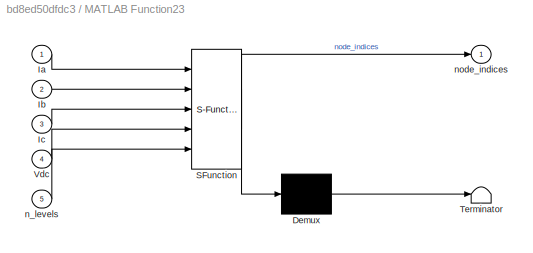
BLOCK [SubSystem] MATLAB Function23
  ErrorFcn = Stateflow.Translate.translate
  PermitHierarchicalResolution = ExplicitOnly
  Ports = [5, 1]
  RequestExecContextInheritance = off
  SFBlockType = MATLAB Function
  TreatAsAtomicUnit = on
BLOCK [Demux] MATLAB Function23/ Demux 
  Outputs = 1
  Ports = [1, 1]
BLOCK [S-Function] MATLAB Function23/ SFunction 
  EnableBusSupport = on
  FunctionName = sf_sfun
  PortCounts = [5 2]
  Ports = [5, 2]
  SFcnIsStateOwnerBlock = off
  SFunctionDeploymentMode = off
  Tag = Stateflow S-Function MSP_CurrentControl 24
BLOCK [Terminator] MATLAB Function23/ Terminator 
BLOCK [Inport] MATLAB Function23/Ia
  IconDisplay = Port number
BLOCK [Inport] MATLAB Function23/Ib
  IconDisplay = Port number
  Port = 2
BLOCK [Inport] MATLAB Function23/Ic
  IconDisplay = Port number
  Port = 3
BLOCK [Inport] MATLAB Function23/Vdc
  IconDisplay = Port number
  Port = 4
BLOCK [Inport] MATLAB Function23/n_levels
  IconDisplay = Port number
  Port = 5
BLOCK [Outport] MATLAB Function23/node_indices
  IconDisplay = Port number
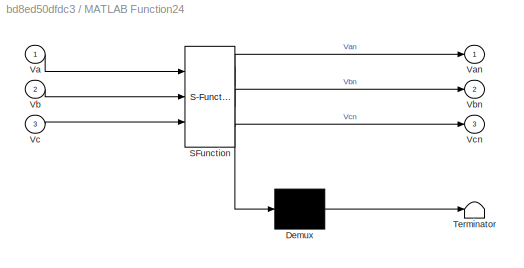
BLOCK [SubSystem] MATLAB Function24
  Commented = on
  ErrorFcn = Stateflow.Translate.translate
  PermitHierarchicalResolution = ExplicitOnly
  Ports = [3, 3]
  RequestExecContextInheritance = off
  SFBlockType = MATLAB Function
  TreatAsAtomicUnit = on
BLOCK [Demux] MATLAB Function24/ Demux 
  Outputs = 1
  Ports = [1, 1]
BLOCK [S-Function] MATLAB Function24/ SFunction 
  EnableBusSupport = on
  FunctionName = sf_sfun
  PortCounts = [3 4]
  Ports = [3, 4]
  SFcnIsStateOwnerBlock = off
  SFunctionDeploymentMode = off
  Tag = Stateflow S-Function MSP_CurrentControl 25
BLOCK [Terminator] MATLAB Function24/ Terminator 
BLOCK [Inport] MATLAB Function24/Va
  IconDisplay = Port number
BLOCK [Outport] MATLAB Function24/Van
  IconDisplay = Port number
BLOCK [Inport] MATLAB Function24/Vb
  IconDisplay = Port number
  Port = 2
BLOCK [Outport] MATLAB Function24/Vbn
  IconDisplay = Port number
  Port = 2
BLOCK [Inport] MATLAB Function24/Vc
  IconDisplay = Port number
  Port = 3
BLOCK [Outport] MATLAB Function24/Vcn
  IconDisplay = Port number
  Port = 3
BLOCK [SubSystem] MATLAB Function3
  Commented = on
  ErrorFcn = Stateflow.Translate.translate
  PermitHierarchicalResolution = ExplicitOnly
  Ports = [1, 1]
  RequestExecContextInheritance = off
  SFBlockType = MATLAB Function
  TreatAsAtomicUnit = on
BLOCK [Demux] MATLAB Function3/ Demux 
  Outputs = 1
  Ports = [1, 1]
BLOCK [S-Function] MATLAB Function3/ SFunction 
  EnableBusSupport = on
  FunctionName = sf_sfun
  PortCounts = [1 2]
  Ports = [1, 2]
  SFcnIsStateOwnerBlock = off
  SFunctionDeploymentMode = off
  Tag = Stateflow S-Function MSP_CurrentControl 4
BLOCK [Terminator] MATLAB Function3/ Terminator 
BLOCK [Inport] MATLAB Function3/u
  IconDisplay = Port number
BLOCK [Outport] MATLAB Function3/y
  IconDisplay = Port number
BLOCK [SubSystem] MATLAB Function4
  Commented = on
  ErrorFcn = Stateflow.Translate.translate
  PermitHierarchicalResolution = ExplicitOnly
  Ports = [1, 1]
  RequestExecContextInheritance = off
  SFBlockType = MATLAB Function
  TreatAsAtomicUnit = on
BLOCK [Demux] MATLAB Function4/ Demux 
  Outputs = 1
  Ports = [1, 1]
BLOCK [S-Function] MATLAB Function4/ SFunction 
  EnableBusSupport = on
  FunctionName = sf_sfun
  PortCounts = [1 2]
  Ports = [1, 2]
  SFcnIsStateOwnerBlock = off
  SFunctionDeploymentMode = off
  Tag = Stateflow S-Function MSP_CurrentControl 5
BLOCK [Terminator] MATLAB Function4/ Terminator 
BLOCK [Inport] MATLAB Function4/u
  IconDisplay = Port number
BLOCK [Outport] MATLAB Function4/y
  IconDisplay = Port number
BLOCK [SubSystem] MATLAB Function5
  Commented = on
  ErrorFcn = Stateflow.Translate.translate
  PermitHierarchicalResolution = ExplicitOnly
  Ports = [1, 1]
  RequestExecContextInheritance = off
  SFBlockType = MATLAB Function
  TreatAsAtomicUnit = on
BLOCK [Demux] MATLAB Function5/ Demux 
  Outputs = 1
  Ports = [1, 1]
BLOCK [S-Function] MATLAB Function5/ SFunction 
  EnableBusSupport = on
  FunctionName = sf_sfun
  PortCounts = [1 2]
  Ports = [1, 2]
  SFcnIsStateOwnerBlock = off
  SFunctionDeploymentMode = off
  Tag = Stateflow S-Function MSP_CurrentControl 6
BLOCK [Terminator] MATLAB Function5/ Terminator 
BLOCK [Inport] MATLAB Function5/u
  IconDisplay = Port number
BLOCK [Outport] MATLAB Function5/y
  IconDisplay = Port number
BLOCK [SubSystem] MATLAB Function6
  Commented = on
  ErrorFcn = Stateflow.Translate.translate
  PermitHierarchicalResolution = ExplicitOnly
  Ports = [1, 1]
  RequestExecContextInheritance = off
  SFBlockType = MATLAB Function
  TreatAsAtomicUnit = on
BLOCK [Demux] MATLAB Function6/ Demux 
  Outputs = 1
  Ports = [1, 1]
BLOCK [S-Function] MATLAB Function6/ SFunction 
  EnableBusSupport = on
  FunctionName = sf_sfun
  PortCounts = [1 2]
  Ports = [1, 2]
  SFcnIsStateOwnerBlock = off
  SFunctionDeploymentMode = off
  Tag = Stateflow S-Function MSP_CurrentControl 7
BLOCK [Terminator] MATLAB Function6/ Terminator 
BLOCK [Inport] MATLAB Function6/u
  IconDisplay = Port number
BLOCK [Outport] MATLAB Function6/y
  IconDisplay = Port number
BLOCK [SubSystem] MATLAB Function7
  Commented = on
  ErrorFcn = Stateflow.Translate.translate
  PermitHierarchicalResolution = ExplicitOnly
  Ports = [1, 1]
  RequestExecContextInheritance = off
  SFBlockType = MATLAB Function
  TreatAsAtomicUnit = on
BLOCK [Demux] MATLAB Function7/ Demux 
  Outputs = 1
  Ports = [1, 1]
BLOCK [S-Function] MATLAB Function7/ SFunction 
  EnableBusSupport = on
  FunctionName = sf_sfun
  PortCounts = [1 2]
  Ports = [1, 2]
  SFcnIsStateOwnerBlock = off
  SFunctionDeploymentMode = off
  Tag = Stateflow S-Function MSP_CurrentControl 8
BLOCK [Terminator] MATLAB Function7/ Terminator 
BLOCK [Inport] MATLAB Function7/u
  IconDisplay = Port number
BLOCK [Outport] MATLAB Function7/y
  IconDisplay = Port number
BLOCK [SubSystem] MATLAB Function8
  Commented = on
  ErrorFcn = Stateflow.Translate.translate
  PermitHierarchicalResolution = ExplicitOnly
  Ports = [1, 1]
  RequestExecContextInheritance = off
  SFBlockType = MATLAB Function
  TreatAsAtomicUnit = on
BLOCK [Demux] MATLAB Function8/ Demux 
  Outputs = 1
  Ports = [1, 1]
BLOCK [S-Function] MATLAB Function8/ SFunction 
  EnableBusSupport = on
  FunctionName = sf_sfun
  PortCounts = [1 2]
  Ports = [1, 2]
  SFcnIsStateOwnerBlock = off
  SFunctionDeploymentMode = off
  Tag = Stateflow S-Function MSP_CurrentControl 9
BLOCK [Terminator] MATLAB Function8/ Terminator 
BLOCK [Inport] MATLAB Function8/u
  IconDisplay = Port number
BLOCK [Outport] MATLAB Function8/y
  IconDisplay = Port number
BLOCK [Product] Matrix Multiply
  Commented = on
  InputSameDT = off
  Multiplication = Matrix(*)
  OutDataTypeStr = Inherit: Inherit via internal rule
  Ports = [2, 1]
  RndMeth = Floor
  SaturateOnIntegerOverflow = off
BLOCK [Product] Matrix Multiply1
  Commented = on
  InputSameDT = off
  Multiplication = Matrix(*)
  OutDataTypeStr = Inherit: Inherit via internal rule
  Ports = [2, 1]
  RndMeth = Floor
  SaturateOnIntegerOverflow = off
BLOCK [Mux] Mux
  Commented = on
  DisplayOption = bar
  Inputs = 3
  Ports = [3, 1]
BLOCK [Mux] Mux1
  DisplayOption = bar
  Inputs = 3
  Ports = [3, 1]
BLOCK [Mux] Mux2
  DisplayOption = bar
  Inputs = 3
  Ports = [3, 1]
BLOCK [Mux] Mux3
  Commented = on
  DisplayOption = bar
  Inputs = 3
  Ports = [3, 1]
BLOCK [Mux] Mux4
  Commented = on
  DisplayOption = bar
  Inputs = 3
  Ports = [3, 1]
BLOCK [Reference] N-Channel MOSFET  REF=elec_lib/Semiconductor
Devices/N-Channel MOSFET
  Ports = [0, 0, 0, 0, 0, 1, 2]
  SourceBlock = elec_lib/Semiconductor\nDevices/N-Channel MOSFET
  SourceProductBaseCode = SN
  SourceProductName = Simscape Electronics
  SourceType = N-Channel MOSFET
BLOCK [Reference] N-Channel MOSFET1  REF=elec_lib/Semiconductor
Devices/N-Channel MOSFET
  Ports = [0, 0, 0, 0, 0, 1, 2]
  SourceBlock = elec_lib/Semiconductor\nDevices/N-Channel MOSFET
  SourceProductBaseCode = SN
  SourceProductName = Simscape Electronics
  SourceType = N-Channel MOSFET
BLOCK [Reference] N-Channel MOSFET10  REF=elec_lib/Semiconductor
Devices/N-Channel MOSFET
  Ports = [0, 0, 0, 0, 0, 1, 2]
  SourceBlock = elec_lib/Semiconductor\nDevices/N-Channel MOSFET
  SourceProductBaseCode = SN
  SourceProductName = Simscape Electronics
  SourceType = N-Channel MOSFET
BLOCK [Reference] N-Channel MOSFET11  REF=elec_lib/Semiconductor
Devices/N-Channel MOSFET
  Ports = [0, 0, 0, 0, 0, 1, 2]
  SourceBlock = elec_lib/Semiconductor\nDevices/N-Channel MOSFET
  SourceProductBaseCode = SN
  SourceProductName = Simscape Electronics
  SourceType = N-Channel MOSFET
BLOCK [Reference] N-Channel MOSFET12  REF=elec_lib/Semiconductor
Devices/N-Channel MOSFET
  Ports = [0, 0, 0, 0, 0, 1, 2]
  SourceBlock = elec_lib/Semiconductor\nDevices/N-Channel MOSFET
  SourceProductBaseCode = SN
  SourceProductName = Simscape Electronics
  SourceType = N-Channel MOSFET
BLOCK [Reference] N-Channel MOSFET13  REF=elec_lib/Semiconductor
Devices/N-Channel MOSFET
  Ports = [0, 0, 0, 0, 0, 1, 2]
  SourceBlock = elec_lib/Semiconductor\nDevices/N-Channel MOSFET
  SourceProductBaseCode = SN
  SourceProductName = Simscape Electronics
  SourceType = N-Channel MOSFET
BLOCK [Reference] N-Channel MOSFET14  REF=elec_lib/Semiconductor
Devices/N-Channel MOSFET
  Ports = [0, 0, 0, 0, 0, 1, 2]
  SourceBlock = elec_lib/Semiconductor\nDevices/N-Channel MOSFET
  SourceProductBaseCode = SN
  SourceProductName = Simscape Electronics
  SourceType = N-Channel MOSFET
BLOCK [Reference] N-Channel MOSFET15  REF=elec_lib/Semiconductor
Devices/N-Channel MOSFET
  Ports = [0, 0, 0, 0, 0, 1, 2]
  SourceBlock = elec_lib/Semiconductor\nDevices/N-Channel MOSFET
  SourceProductBaseCode = SN
  SourceProductName = Simscape Electronics
  SourceType = N-Channel MOSFET
BLOCK [Reference] N-Channel MOSFET16  REF=elec_lib/Semiconductor
Devices/N-Channel MOSFET
  Ports = [0, 0, 0, 0, 0, 1, 2]
  SourceBlock = elec_lib/Semiconductor\nDevices/N-Channel MOSFET
  SourceProductBaseCode = SN
  SourceProductName = Simscape Electronics
  SourceType = N-Channel MOSFET
BLOCK [Reference] N-Channel MOSFET17  REF=elec_lib/Semiconductor
Devices/N-Channel MOSFET
  Ports = [0, 0, 0, 0, 0, 1, 2]
  SourceBlock = elec_lib/Semiconductor\nDevices/N-Channel MOSFET
  SourceProductBaseCode = SN
  SourceProductName = Simscape Electronics
  SourceType = N-Channel MOSFET
BLOCK [Reference] N-Channel MOSFET18  REF=elec_lib/Semiconductor
Devices/N-Channel MOSFET
  Ports = [0, 0, 0, 0, 0, 1, 2]
  SourceBlock = elec_lib/Semiconductor\nDevices/N-Channel MOSFET
  SourceProductBaseCode = SN
  SourceProductName = Simscape Electronics
  SourceType = N-Channel MOSFET
BLOCK [Reference] N-Channel MOSFET19  REF=elec_lib/Semiconductor
Devices/N-Channel MOSFET
  Ports = [0, 0, 0, 0, 0, 1, 2]
  SourceBlock = elec_lib/Semiconductor\nDevices/N-Channel MOSFET
  SourceProductBaseCode = SN
  SourceProductName = Simscape Electronics
  SourceType = N-Channel MOSFET
BLOCK [Reference] N-Channel MOSFET2  REF=elec_lib/Semiconductor
Devices/N-Channel MOSFET
  Ports = [0, 0, 0, 0, 0, 1, 2]
  SourceBlock = elec_lib/Semiconductor\nDevices/N-Channel MOSFET
  SourceProductBaseCode = SN
  SourceProductName = Simscape Electronics
  SourceType = N-Channel MOSFET
BLOCK [Reference] N-Channel MOSFET20  REF=elec_lib/Semiconductor
Devices/N-Channel MOSFET
  Ports = [0, 0, 0, 0, 0, 1, 2]
  SourceBlock = elec_lib/Semiconductor\nDevices/N-Channel MOSFET
  SourceProductBaseCode = SN
  SourceProductName = Simscape Electronics
  SourceType = N-Channel MOSFET
BLOCK [Reference] N-Channel MOSFET21  REF=elec_lib/Semiconductor
Devices/N-Channel MOSFET
  Ports = [0, 0, 0, 0, 0, 1, 2]
  SourceBlock = elec_lib/Semiconductor\nDevices/N-Channel MOSFET
  SourceProductBaseCode = SN
  SourceProductName = Simscape Electronics
  SourceType = N-Channel MOSFET
BLOCK [Reference] N-Channel MOSFET22  REF=elec_lib/Semiconductor
Devices/N-Channel MOSFET
  Ports = [0, 0, 0, 0, 0, 1, 2]
  SourceBlock = elec_lib/Semiconductor\nDevices/N-Channel MOSFET
  SourceProductBaseCode = SN
  SourceProductName = Simscape Electronics
  SourceType = N-Channel MOSFET
BLOCK [Reference] N-Channel MOSFET23  REF=elec_lib/Semiconductor
Devices/N-Channel MOSFET
  Ports = [0, 0, 0, 0, 0, 1, 2]
  SourceBlock = elec_lib/Semiconductor\nDevices/N-Channel MOSFET
  SourceProductBaseCode = SN
  SourceProductName = Simscape Electronics
  SourceType = N-Channel MOSFET
BLOCK [Reference] N-Channel MOSFET24  REF=elec_lib/Semiconductor
Devices/N-Channel MOSFET
  Ports = [0, 0, 0, 0, 0, 1, 2]
  SourceBlock = elec_lib/Semiconductor\nDevices/N-Channel MOSFET
  SourceProductBaseCode = SN
  SourceProductName = Simscape Electronics
  SourceType = N-Channel MOSFET
BLOCK [Reference] N-Channel MOSFET25  REF=elec_lib/Semiconductor
Devices/N-Channel MOSFET
  Ports = [0, 0, 0, 0, 0, 1, 2]
  SourceBlock = elec_lib/Semiconductor\nDevices/N-Channel MOSFET
  SourceProductBaseCode = SN
  SourceProductName = Simscape Electronics
  SourceType = N-Channel MOSFET
BLOCK [Reference] N-Channel MOSFET26  REF=elec_lib/Semiconductor
Devices/N-Channel MOSFET
  Ports = [0, 0, 0, 0, 0, 1, 2]
  SourceBlock = elec_lib/Semiconductor\nDevices/N-Channel MOSFET
  SourceProductBaseCode = SN
  SourceProductName = Simscape Electronics
  SourceType = N-Channel MOSFET
BLOCK [Reference] N-Channel MOSFET27  REF=elec_lib/Semiconductor
Devices/N-Channel MOSFET
  Ports = [0, 0, 0, 0, 0, 1, 2]
  SourceBlock = elec_lib/Semiconductor\nDevices/N-Channel MOSFET
  SourceProductBaseCode = SN
  SourceProductName = Simscape Electronics
  SourceType = N-Channel MOSFET
BLOCK [Reference] N-Channel MOSFET28  REF=elec_lib/Semiconductor
Devices/N-Channel MOSFET
  Ports = [0, 0, 0, 0, 0, 1, 2]
  SourceBlock = elec_lib/Semiconductor\nDevices/N-Channel MOSFET
  SourceProductBaseCode = SN
  SourceProductName = Simscape Electronics
  SourceType = N-Channel MOSFET
BLOCK [Reference] N-Channel MOSFET29  REF=elec_lib/Semiconductor
Devices/N-Channel MOSFET
  Ports = [0, 0, 0, 0, 0, 1, 2]
  SourceBlock = elec_lib/Semiconductor\nDevices/N-Channel MOSFET
  SourceProductBaseCode = SN
  SourceProductName = Simscape Electronics
  SourceType = N-Channel MOSFET
BLOCK [Reference] N-Channel MOSFET3  REF=elec_lib/Semiconductor
Devices/N-Channel MOSFET
  Ports = [0, 0, 0, 0, 0, 1, 2]
  SourceBlock = elec_lib/Semiconductor\nDevices/N-Channel MOSFET
  SourceProductBaseCode = SN
  SourceProductName = Simscape Electronics
  SourceType = N-Channel MOSFET
BLOCK [Reference] N-Channel MOSFET30  REF=elec_lib/Semiconductor
Devices/N-Channel MOSFET
  Ports = [0, 0, 0, 0, 0, 1, 2]
  SourceBlock = elec_lib/Semiconductor\nDevices/N-Channel MOSFET
  SourceProductBaseCode = SN
  SourceProductName = Simscape Electronics
  SourceType = N-Channel MOSFET
BLOCK [Reference] N-Channel MOSFET31  REF=elec_lib/Semiconductor
Devices/N-Channel MOSFET
  Ports = [0, 0, 0, 0, 0, 1, 2]
  SourceBlock = elec_lib/Semiconductor\nDevices/N-Channel MOSFET
  SourceProductBaseCode = SN
  SourceProductName = Simscape Electronics
  SourceType = N-Channel MOSFET
BLOCK [Reference] N-Channel MOSFET32  REF=elec_lib/Semiconductor
Devices/N-Channel MOSFET
  Ports = [0, 0, 0, 0, 0, 1, 2]
  SourceBlock = elec_lib/Semiconductor\nDevices/N-Channel MOSFET
  SourceProductBaseCode = SN
  SourceProductName = Simscape Electronics
  SourceType = N-Channel MOSFET
BLOCK [Reference] N-Channel MOSFET33  REF=elec_lib/Semiconductor
Devices/N-Channel MOSFET
  Ports = [0, 0, 0, 0, 0, 1, 2]
  SourceBlock = elec_lib/Semiconductor\nDevices/N-Channel MOSFET
  SourceProductBaseCode = SN
  SourceProductName = Simscape Electronics
  SourceType = N-Channel MOSFET
BLOCK [Reference] N-Channel MOSFET34  REF=elec_lib/Semiconductor
Devices/N-Channel MOSFET
  Ports = [0, 0, 0, 0, 0, 1, 2]
  SourceBlock = elec_lib/Semiconductor\nDevices/N-Channel MOSFET
  SourceProductBaseCode = SN
  SourceProductName = Simscape Electronics
  SourceType = N-Channel MOSFET
BLOCK [Reference] N-Channel MOSFET35  REF=elec_lib/Semiconductor
Devices/N-Channel MOSFET
  Ports = [0, 0, 0, 0, 0, 1, 2]
  SourceBlock = elec_lib/Semiconductor\nDevices/N-Channel MOSFET
  SourceProductBaseCode = SN
  SourceProductName = Simscape Electronics
  SourceType = N-Channel MOSFET
BLOCK [Reference] N-Channel MOSFET4  REF=elec_lib/Semiconductor
Devices/N-Channel MOSFET
  Ports = [0, 0, 0, 0, 0, 1, 2]
  SourceBlock = elec_lib/Semiconductor\nDevices/N-Channel MOSFET
  SourceProductBaseCode = SN
  SourceProductName = Simscape Electronics
  SourceType = N-Channel MOSFET
BLOCK [Reference] N-Channel MOSFET5  REF=elec_lib/Semiconductor
Devices/N-Channel MOSFET
  Ports = [0, 0, 0, 0, 0, 1, 2]
  SourceBlock = elec_lib/Semiconductor\nDevices/N-Channel MOSFET
  SourceProductBaseCode = SN
  SourceProductName = Simscape Electronics
  SourceType = N-Channel MOSFET
BLOCK [Reference] N-Channel MOSFET6  REF=elec_lib/Semiconductor
Devices/N-Channel MOSFET
  Ports = [0, 0, 0, 0, 0, 1, 2]
  SourceBlock = elec_lib/Semiconductor\nDevices/N-Channel MOSFET
  SourceProductBaseCode = SN
  SourceProductName = Simscape Electronics
  SourceType = N-Channel MOSFET
BLOCK [Reference] N-Channel MOSFET7  REF=elec_lib/Semiconductor
Devices/N-Channel MOSFET
  Ports = [0, 0, 0, 0, 0, 1, 2]
  SourceBlock = elec_lib/Semiconductor\nDevices/N-Channel MOSFET
  SourceProductBaseCode = SN
  SourceProductName = Simscape Electronics
  SourceType = N-Channel MOSFET
BLOCK [Reference] N-Channel MOSFET8  REF=elec_lib/Semiconductor
Devices/N-Channel MOSFET
  Ports = [0, 0, 0, 0, 0, 1, 2]
  SourceBlock = elec_lib/Semiconductor\nDevices/N-Channel MOSFET
  SourceProductBaseCode = SN
  SourceProductName = Simscape Electronics
  SourceType = N-Channel MOSFET
BLOCK [Reference] N-Channel MOSFET9  REF=elec_lib/Semiconductor
Devices/N-Channel MOSFET
  Ports = [0, 0, 0, 0, 0, 1, 2]
  SourceBlock = elec_lib/Semiconductor\nDevices/N-Channel MOSFET
  SourceProductBaseCode = SN
  SourceProductName = Simscape Electronics
  SourceType = N-Channel MOSFET
BLOCK [Reference] PS-Simulink Converter1  REF=nesl_utility/PS-Simulink
Converter
  Ports = [0, 1, 0, 0, 0, 1]
  SourceBlock = nesl_utility/PS-Simulink\nConverter
  SourceProductBaseCode = SS
  SourceProductName = Simscape
  SourceType = PS-Simulink\nConverter
BLOCK [Reference] PS-Simulink Converter10  REF=nesl_utility/PS-Simulink
Converter
  Ports = [0, 1, 0, 0, 0, 1]
  SourceBlock = nesl_utility/PS-Simulink\nConverter
  SourceProductBaseCode = SS
  SourceProductName = Simscape
  SourceType = PS-Simulink\nConverter
BLOCK [Reference] PS-Simulink Converter11  REF=nesl_utility/PS-Simulink
Converter
  Ports = [0, 1, 0, 0, 0, 1]
  SourceBlock = nesl_utility/PS-Simulink\nConverter
  SourceProductBaseCode = SS
  SourceProductName = Simscape
  SourceType = PS-Simulink\nConverter
BLOCK [Reference] PS-Simulink Converter12  REF=nesl_utility/PS-Simulink
Converter
  Ports = [0, 1, 0, 0, 0, 1]
  SourceBlock = nesl_utility/PS-Simulink\nConverter
  SourceProductBaseCode = SS
  SourceProductName = Simscape
  SourceType = PS-Simulink\nConverter
BLOCK [Reference] PS-Simulink Converter13  REF=nesl_utility/PS-Simulink
Converter
  Ports = [0, 1, 0, 0, 0, 1]
  SourceBlock = nesl_utility/PS-Simulink\nConverter
  SourceProductBaseCode = SS
  SourceProductName = Simscape
  SourceType = PS-Simulink\nConverter
BLOCK [Reference] PS-Simulink Converter14  REF=nesl_utility/PS-Simulink
Converter
  Ports = [0, 1, 0, 0, 0, 1]
  SourceBlock = nesl_utility/PS-Simulink\nConverter
  SourceProductBaseCode = SS
  SourceProductName = Simscape
  SourceType = PS-Simulink\nConverter
BLOCK [Reference] PS-Simulink Converter15  REF=nesl_utility/PS-Simulink
Converter
  Ports = [0, 1, 0, 0, 0, 1]
  SourceBlock = nesl_utility/PS-Simulink\nConverter
  SourceProductBaseCode = SS
  SourceProductName = Simscape
  SourceType = PS-Simulink\nConverter
BLOCK [Reference] PS-Simulink Converter16  REF=nesl_utility/PS-Simulink
Converter
  Ports = [0, 1, 0, 0, 0, 1]
  SourceBlock = nesl_utility/PS-Simulink\nConverter
  SourceProductBaseCode = SS
  SourceProductName = Simscape
  SourceType = PS-Simulink\nConverter
BLOCK [Reference] PS-Simulink Converter17  REF=nesl_utility/PS-Simulink
Converter
  Ports = [0, 1, 0, 0, 0, 1]
  SourceBlock = nesl_utility/PS-Simulink\nConverter
  SourceProductBaseCode = SS
  SourceProductName = Simscape
  SourceType = PS-Simulink\nConverter
BLOCK [Reference] PS-Simulink Converter18  REF=nesl_utility/PS-Simulink
Converter
  Ports = [0, 1, 0, 0, 0, 1]
  SourceBlock = nesl_utility/PS-Simulink\nConverter
  SourceProductBaseCode = SS
  SourceProductName = Simscape
  SourceType = PS-Simulink\nConverter
BLOCK [Reference] PS-Simulink Converter19  REF=nesl_utility/PS-Simulink
Converter
  Ports = [0, 1, 0, 0, 0, 1]
  SourceBlock = nesl_utility/PS-Simulink\nConverter
  SourceProductBaseCode = SS
  SourceProductName = Simscape
  SourceType = PS-Simulink\nConverter
BLOCK [Reference] PS-Simulink Converter2  REF=nesl_utility/PS-Simulink
Converter
  Ports = [0, 1, 0, 0, 0, 1]
  SourceBlock = nesl_utility/PS-Simulink\nConverter
  SourceProductBaseCode = SS
  SourceProductName = Simscape
  SourceType = PS-Simulink\nConverter
BLOCK [Reference] PS-Simulink Converter3  REF=nesl_utility/PS-Simulink
Converter
  Ports = [0, 1, 0, 0, 0, 1]
  SourceBlock = nesl_utility/PS-Simulink\nConverter
  SourceProductBaseCode = SS
  SourceProductName = Simscape
  SourceType = PS-Simulink\nConverter
BLOCK [Reference] PS-Simulink Converter4  REF=nesl_utility/PS-Simulink
Converter
  Ports = [0, 1, 0, 0, 0, 1]
  SourceBlock = nesl_utility/PS-Simulink\nConverter
  SourceProductBaseCode = SS
  SourceProductName = Simscape
  SourceType = PS-Simulink\nConverter
BLOCK [Reference] PS-Simulink Converter5  REF=nesl_utility/PS-Simulink
Converter
  Ports = [0, 1, 0, 0, 0, 1]
  SourceBlock = nesl_utility/PS-Simulink\nConverter
  SourceProductBaseCode = SS
  SourceProductName = Simscape
  SourceType = PS-Simulink\nConverter
BLOCK [Reference] PS-Simulink Converter6  REF=nesl_utility/PS-Simulink
Converter
  Ports = [0, 1, 0, 0, 0, 1]
  SourceBlock = nesl_utility/PS-Simulink\nConverter
  SourceProductBaseCode = SS
  SourceProductName = Simscape
  SourceType = PS-Simulink\nConverter
BLOCK [Reference] PS-Simulink Converter7  REF=nesl_utility/PS-Simulink
Converter
  Ports = [0, 1, 0, 0, 0, 1]
  SourceBlock = nesl_utility/PS-Simulink\nConverter
  SourceProductBaseCode = SS
  SourceProductName = Simscape
  SourceType = PS-Simulink\nConverter
BLOCK [Reference] PS-Simulink Converter8  REF=nesl_utility/PS-Simulink
Converter
  Ports = [0, 1, 0, 0, 0, 1]
  SourceBlock = nesl_utility/PS-Simulink\nConverter
  SourceProductBaseCode = SS
  SourceProductName = Simscape
  SourceType = PS-Simulink\nConverter
BLOCK [Reference] PS-Simulink Converter9  REF=nesl_utility/PS-Simulink
Converter
  Ports = [0, 1, 0, 0, 0, 1]
  SourceBlock = nesl_utility/PS-Simulink\nConverter
  SourceProductBaseCode = SS
  SourceProductName = Simscape
  SourceType = PS-Simulink\nConverter
BLOCK [RateTransition] Rate Transition
  Commented = on
  OutPortSampleTime = Ts
BLOCK [RateTransition] Rate Transition1
  OutPortSampleTime = Ts
BLOCK [RateTransition] Rate Transition2
  OutPortSampleTime = Ts
BLOCK [RateTransition] Rate Transition3
  OutPortSampleTime = Ts
BLOCK [Reference] Resistor  REF=fl_lib/Electrical/Electrical Elements/Resistor
  Ports = [0, 0, 0, 0, 0, 1, 1]
  SourceBlock = fl_lib/Electrical/Electrical Elements/Resistor
  SourceProductBaseCode = SS
  SourceProductName = Simscape
  SourceType = Resistor
BLOCK [Reference] Resistor1  REF=fl_lib/Electrical/Electrical Elements/Resistor
  Ports = [0, 0, 0, 0, 0, 1, 1]
  SourceBlock = fl_lib/Electrical/Electrical Elements/Resistor
  SourceProductBaseCode = SS
  SourceProductName = Simscape
  SourceType = Resistor
BLOCK [Reference] Resistor2  REF=fl_lib/Electrical/Electrical Elements/Resistor
  Ports = [0, 0, 0, 0, 0, 1, 1]
  SourceBlock = fl_lib/Electrical/Electrical Elements/Resistor
  SourceProductBaseCode = SS
  SourceProductName = Simscape
  SourceType = Resistor
BLOCK [Scope] Scope
  Floating = off
  NumInputPorts = 3
  Ports = [3]
  ScopeSpecificationString = Simulink.scopes.TimeScopeBlockCfg('CurrentConfiguration', extmgr.ConfigurationSet(extmgr.Configuration('Core','General UI',true),extmgr.Configuration('Core','Source UI',true),extmgr.Configuration('Sources','WiredSimulink',true,'DataLoggingVariableName','ScopeData1'),extmgr.Configuration('Visuals','Time Domain',true,'SerializedDisplays',{struct('MinYLimReal','-6.58489','MaxYLimReal','6.45069','YLab...<+2826ch>
BLOCK [Scope] Scope1
  Commented = on
  Floating = off
  NumInputPorts = 9
  Ports = [9]
  ScopeSpecificationString = Simulink.scopes.TimeScopeBlockCfg('CurrentConfiguration', extmgr.ConfigurationSet(extmgr.Configuration('Core','General UI',true),extmgr.Configuration('Core','Source UI',true),extmgr.Configuration('Sources','WiredSimulink',true,'DataLoggingVariableName','ScopeData2'),extmgr.Configuration('Visuals','Time Domain',true,'SerializedDisplays',{struct('MinYLimReal','-1.1','MaxYLimReal','-0.9','YLabelReal'...<+6844ch>
BLOCK [Scope] Scope10
  Commented = on
  Floating = off
  NumInputPorts = 1
  Ports = [1]
  ScopeSpecificationString = Simulink.scopes.TimeScopeBlockCfg('CurrentConfiguration', extmgr.ConfigurationSet(extmgr.Configuration('Core','General UI',true),extmgr.Configuration('Core','Source UI',true),extmgr.Configuration('Sources','WiredSimulink',true,'DataLoggingVariableName','ScopeData5'),extmgr.Configuration('Visuals','Time Domain',true,'SerializedDisplays',{struct('MinYLimReal','-4.38742','MaxYLimReal','4.266','YLabel...<+1504ch>
BLOCK [Scope] Scope11
  Commented = on
  Floating = off
  NumInputPorts = 1
  Ports = [1]
  ScopeSpecificationString = Simulink.scopes.TimeScopeBlockCfg('CurrentConfiguration', extmgr.ConfigurationSet(extmgr.Configuration('Core','General UI',true),extmgr.Configuration('Core','Source UI',true),extmgr.Configuration('Sources','WiredSimulink',true,'DataLoggingVariableName','ScopeData6'),extmgr.Configuration('Visuals','Time Domain',true,'SerializedDisplays',{struct('MinYLimReal','-0.05408','MaxYLimReal','0.04525','YLab...<+1553ch>
BLOCK [Scope] Scope12
  Commented = on
  Floating = off
  NumInputPorts = 1
  Ports = [1]
  ScopeSpecificationString = Simulink.scopes.TimeScopeBlockCfg('CurrentConfiguration', extmgr.ConfigurationSet(extmgr.Configuration('Core','General UI',true),extmgr.Configuration('Core','Source UI',true),extmgr.Configuration('Sources','WiredSimulink',true,'DataLoggingVariableName','ScopeData7'),extmgr.Configuration('Visuals','Time Domain',true),extmgr.Configuration('Tools','Plot Navigation',true),extmgr.Configuration('Tools',...<+40ch>
BLOCK [Scope] Scope13
  Floating = off
  NumInputPorts = 1
  Ports = [1]
  ScopeSpecificationString = Simulink.scopes.TimeScopeBlockCfg('CurrentConfiguration', extmgr.ConfigurationSet(extmgr.Configuration('Core','General UI',true),extmgr.Configuration('Core','Source UI',true),extmgr.Configuration('Sources','WiredSimulink',true,'DataLoggingVariableName','ScopeData3'),extmgr.Configuration('Visuals','Time Domain',true,'SerializedDisplays',{struct('MinYLimReal','-1.96248','MaxYLimReal','17.66231','YLa...<+1393ch>
BLOCK [Scope] Scope14
  Commented = on
  Floating = off
  NumInputPorts = 3
  Ports = [3]
  ScopeSpecificationString = Simulink.scopes.TimeScopeBlockCfg('CurrentConfiguration', extmgr.ConfigurationSet(extmgr.Configuration('Core','General UI',true),extmgr.Configuration('Core','Source UI',true),extmgr.Configuration('Sources','WiredSimulink',true,'DataLoggingVariableName','ScopeData1'),extmgr.Configuration('Visuals','Time Domain',true,'SerializedDisplays',{struct('MinYLimReal','-5.00000','MaxYLimReal','4.29795','YLab...<+2794ch>
BLOCK [Scope] Scope15
  Commented = on
  Floating = off
  NumInputPorts = 3
  Ports = [3]
  ScopeSpecificationString = Simulink.scopes.TimeScopeBlockCfg('CurrentConfiguration', extmgr.ConfigurationSet(extmgr.Configuration('Core','General UI',true),extmgr.Configuration('Core','Source UI',true),extmgr.Configuration('Sources','WiredSimulink',true,'DataLoggingVariableName','ScopeData1'),extmgr.Configuration('Visuals','Time Domain',true,'SerializedDisplays',{struct('MinYLimReal','-43.1875','MaxYLimReal','58.6875','YLab...<+2774ch>
BLOCK [Scope] Scope16
  Commented = on
  Floating = off
  NumInputPorts = 3
  Ports = [3]
  ScopeSpecificationString = Simulink.scopes.TimeScopeBlockCfg('CurrentConfiguration', extmgr.ConfigurationSet(extmgr.Configuration('Core','General UI',true),extmgr.Configuration('Core','Source UI',true),extmgr.Configuration('Sources','WiredSimulink',true,'DataLoggingVariableName','ScopeData3'),extmgr.Configuration('Visuals','Time Domain',true,'SerializedDisplays',{struct('MinYLimReal','-0.32813','MaxYLimReal','0.60938','YLab...<+2828ch>
BLOCK [Scope] Scope17
  Commented = on
  Floating = off
  NumInputPorts = 3
  Ports = [3]
  ScopeSpecificationString = Simulink.scopes.TimeScopeBlockCfg('CurrentConfiguration', extmgr.ConfigurationSet(extmgr.Configuration('Core','General UI',true),extmgr.Configuration('Core','Source UI',true),extmgr.Configuration('Sources','WiredSimulink',true,'DataLoggingVariableName','ScopeData2'),extmgr.Configuration('Visuals','Time Domain',true,'SerializedDisplays',{struct('MinYLimReal','-1.00000','MaxYLimReal','1.00000','YLab...<+2806ch>
BLOCK [Scope] Scope18
  Floating = off
  NumInputPorts = 1
  Ports = [1]
  ScopeSpecificationString = Simulink.scopes.TimeScopeBlockCfg('CurrentConfiguration', extmgr.ConfigurationSet(extmgr.Configuration('Core','General UI',true),extmgr.Configuration('Core','Source UI',true),extmgr.Configuration('Sources','WiredSimulink',true,'DataLoggingVariableName','ScopeData1'),extmgr.Configuration('Visuals','Time Domain',true,'SerializedDisplays',{struct('MinYLimReal','-1.00000','MaxYLimReal','1.00000','YLab...<+1753ch>
BLOCK [Scope] Scope19
  Floating = off
  NumInputPorts = 1
  Ports = [1]
  ScopeSpecificationString = Simulink.scopes.TimeScopeBlockCfg('CurrentConfiguration', extmgr.ConfigurationSet(extmgr.Configuration('Core','General UI',true),extmgr.Configuration('Core','Source UI',true),extmgr.Configuration('Sources','WiredSimulink',true,'DataLoggingVariableName','ScopeData2'),extmgr.Configuration('Visuals','Time Domain',true,'SerializedDisplays',{struct('MinYLimReal','-1.00000','MaxYLimReal','1.00000','YLab...<+1790ch>
BLOCK [Scope] Scope2
  Commented = on
  Floating = off
  NumInputPorts = 6
  Ports = [6]
  ScopeSpecificationString = Simulink.scopes.TimeScopeBlockCfg('CurrentConfiguration', extmgr.ConfigurationSet(extmgr.Configuration('Core','General UI',true),extmgr.Configuration('Core','Source UI',true),extmgr.Configuration('Sources','WiredSimulink',true,'DataLoggingVariableName','ScopeData4'),extmgr.Configuration('Visuals','Time Domain',true,'SerializedDisplays',{struct('MinYLimReal','-4.67792','MaxYLimReal','1.64957','YLab...<+3053ch>
BLOCK [Scope] Scope20
  Commented = on
  Floating = off
  NumInputPorts = 3
  Ports = [3]
  ScopeSpecificationString = Simulink.scopes.TimeScopeBlockCfg('CurrentConfiguration', extmgr.ConfigurationSet(extmgr.Configuration('Core','General UI',true),extmgr.Configuration('Core','Source UI',true),extmgr.Configuration('Sources','WiredSimulink',true,'DataLoggingVariableName','ScopeData2'),extmgr.Configuration('Visuals','Time Domain',true,'SerializedDisplays',{struct('MinYLimReal','0.019985','MaxYLimReal','0.020003','YLa...<+2824ch>
BLOCK [Scope] Scope3
  Floating = off
  NumInputPorts = 6
  Ports = [6]
  ScopeSpecificationString = Simulink.scopes.TimeScopeBlockCfg('CurrentConfiguration', extmgr.ConfigurationSet(extmgr.Configuration('Core','General UI',true),extmgr.Configuration('Core','Source UI',true),extmgr.Configuration('Sources','WiredSimulink',true,'DataLoggingVariableName','ScopeData1'),extmgr.Configuration('Visuals','Time Domain',true,'SerializedDisplays',{struct('MinYLimReal','-1.00000','MaxYLimReal','1.00000','YLab...<+6367ch>
BLOCK [Scope] Scope4
  Commented = on
  Floating = off
  NumInputPorts = 6
  Ports = [6]
  ScopeSpecificationString = Simulink.scopes.TimeScopeBlockCfg('CurrentConfiguration', extmgr.ConfigurationSet(extmgr.Configuration('Core','General UI',true),extmgr.Configuration('Core','Source UI',true),extmgr.Configuration('Sources','WiredSimulink',true),extmgr.Configuration('Visuals','Time Domain',true,'SerializedDisplays',{struct('MinYLimReal','-1.00000','MaxYLimReal','9.00000','YLabelReal','','MinYLimMag','0.00000','MaxY...<+4820ch>
BLOCK [Scope] Scope5
  Floating = off
  NumInputPorts = 6
  Ports = [6]
  ScopeSpecificationString = Simulink.scopes.TimeScopeBlockCfg('CurrentConfiguration', extmgr.ConfigurationSet(extmgr.Configuration('Core','General UI',true),extmgr.Configuration('Core','Source UI',true),extmgr.Configuration('Sources','WiredSimulink',true,'DataLoggingVariableName','ScopeData2'),extmgr.Configuration('Visuals','Time Domain',true,'SerializedDisplays',{struct('MinYLimReal','-1.00000','MaxYLimReal','1.00000','YLab...<+5299ch>
BLOCK [Scope] Scope6
  Floating = off
  NumInputPorts = 1
  Ports = [1]
  ScopeSpecificationString = Simulink.scopes.TimeScopeBlockCfg('CurrentConfiguration', extmgr.ConfigurationSet(extmgr.Configuration('Core','General UI',true),extmgr.Configuration('Core','Source UI',true),extmgr.Configuration('Sources','WiredSimulink',true,'DataLoggingVariableName','ScopeData1'),extmgr.Configuration('Visuals','Time Domain',true,'SerializedDisplays',{struct('MinYLimReal','-7.5','MaxYLimReal','7.5','YLabelReal',...<+1715ch>
BLOCK [Scope] Scope7
  Commented = on
  Floating = off
  NumInputPorts = 1
  Ports = [1]
  ScopeSpecificationString = Simulink.scopes.TimeScopeBlockCfg('CurrentConfiguration', extmgr.ConfigurationSet(extmgr.Configuration('Core','General UI',true),extmgr.Configuration('Core','Source UI',true),extmgr.Configuration('Sources','WiredSimulink',true,'DataLoggingVariableName','ScopeData3'),extmgr.Configuration('Visuals','Time Domain',true,'SerializedDisplays',{struct('MinYLimReal','-0.48505','MaxYLimReal','4.36545','YLab...<+1493ch>
BLOCK [Scope] Scope8
  Commented = on
  Floating = off
  NumInputPorts = 3
  Ports = [3]
  ScopeSpecificationString = Simulink.scopes.TimeScopeBlockCfg('CurrentConfiguration', extmgr.ConfigurationSet(extmgr.Configuration('Core','General UI',true),extmgr.Configuration('Core','Source UI',true),extmgr.Configuration('Sources','WiredSimulink',true,'DataLoggingVariableName','ScopeData1'),extmgr.Configuration('Visuals','Time Domain',true,'SerializedDisplays',{struct('MinYLimReal','-2.25','MaxYLimReal','0.25','YLabelReal...<+2840ch>
BLOCK [Scope] Scope9
  Floating = off
  NumInputPorts = 6
  Ports = [6]
  ScopeSpecificationString = Simulink.scopes.TimeScopeBlockCfg('CurrentConfiguration', extmgr.ConfigurationSet(extmgr.Configuration('Core','General UI',true),extmgr.Configuration('Core','Source UI',true),extmgr.Configuration('Sources','WiredSimulink',true,'DataLoggingVariableName','ScopeData2'),extmgr.Configuration('Visuals','Time Domain',true,'SerializedDisplays',{struct('MinYLimReal','-1.06264','MaxYLimReal','1.5054','YLabe...<+1867ch>
BLOCK [Selector] Selector
  Commented = on
  IndexMode = Zero-based
  IndexOptions = Index vector (dialog)
  Indices = [0:2]
  InputPortWidth = 23
  OutputSizes = 1
  Ports = [1, 1]
BLOCK [Selector] Selector1
  Commented = on
  IndexMode = Zero-based
  IndexOptions = Index vector (dialog)
  Indices = 3:5
  InputPortWidth = 23
  OutputSizes = 1
  Ports = [1, 1]
BLOCK [Selector] Selector2
  Commented = on
  IndexMode = Zero-based
  IndexOptions = Index vector (dialog)
  Indices = 6:8
  InputPortWidth = 23
  OutputSizes = 1
  Ports = [1, 1]
BLOCK [Selector] Selector3
  Commented = on
  IndexMode = Zero-based
  IndexOptions = Index vector (dialog)
  Indices = 9:11
  InputPortWidth = 23
  OutputSizes = 1
  Ports = [1, 1]
BLOCK [Selector] Selector4
  Commented = on
  IndexMode = Zero-based
  IndexOptions = Index vector (dialog)
  Indices = 12:14
  InputPortWidth = 23
  OutputSizes = 1
  Ports = [1, 1]
BLOCK [Selector] Selector5
  Commented = on
  IndexMode = Zero-based
  IndexOptions = Index vector (dialog)
  Indices = 15:17
  InputPortWidth = 23
  OutputSizes = 1
  Ports = [1, 1]
BLOCK [Selector] Selector6
  Commented = on
  IndexMode = Zero-based
  IndexOptions = Index vector (dialog)
  Indices = 18:20
  InputPortWidth = 23
  OutputSizes = 1
  Ports = [1, 1]
BLOCK [Reference] Serial Configuration  REF=instrumentlib/Serial Configuration
  Commented = on
  Ports = []
  Priority = -200000
  SourceBlock = instrumentlib/Serial Configuration
  SourceProductBaseCode = IC
  SourceProductName = Instrument Control Toolbox
  SourceType = Serial Configuration
BLOCK [Reference] Serial Receive  REF=instrumentlib/Serial Receive
  Commented = on
  Ports = [0, 1]
  SourceBlock = instrumentlib/Serial Receive
  SourceProductBaseCode = IC
  SourceProductName = Instrument Control Toolbox
  SourceType = Serial Receive
BLOCK [Reference] Serial Send  REF=instrumentlib/Serial Send
  Commented = on
  Ports = [1]
  SourceBlock = instrumentlib/Serial Send
  SourceProductBaseCode = IC
  SourceProductName = Instrument Control Toolbox
  SourceType = Serial Send
BLOCK [Reference] Simulink-PS Converter  REF=nesl_utility/Simulink-PS
Converter
  Ports = [1, 0, 0, 0, 0, 0, 1]
  SourceBlock = nesl_utility/Simulink-PS\nConverter
  SourceProductBaseCode = SS
  SourceProductName = Simscape
  SourceType = Simulink-PS\nConverter
BLOCK [Reference] Simulink-PS Converter1  REF=nesl_utility/Simulink-PS
Converter
  Ports = [1, 0, 0, 0, 0, 0, 1]
  SourceBlock = nesl_utility/Simulink-PS\nConverter
  SourceProductBaseCode = SS
  SourceProductName = Simscape
  SourceType = Simulink-PS\nConverter
BLOCK [Reference] Simulink-PS Converter10  REF=nesl_utility/Simulink-PS
Converter
  Ports = [1, 0, 0, 0, 0, 0, 1]
  SourceBlock = nesl_utility/Simulink-PS\nConverter
  SourceProductBaseCode = SS
  SourceProductName = Simscape
  SourceType = Simulink-PS\nConverter
BLOCK [Reference] Simulink-PS Converter11  REF=nesl_utility/Simulink-PS
Converter
  Ports = [1, 0, 0, 0, 0, 0, 1]
  SourceBlock = nesl_utility/Simulink-PS\nConverter
  SourceProductBaseCode = SS
  SourceProductName = Simscape
  SourceType = Simulink-PS\nConverter
BLOCK [Reference] Simulink-PS Converter12  REF=nesl_utility/Simulink-PS
Converter
  Ports = [1, 0, 0, 0, 0, 0, 1]
  SourceBlock = nesl_utility/Simulink-PS\nConverter
  SourceProductBaseCode = SS
  SourceProductName = Simscape
  SourceType = Simulink-PS\nConverter
BLOCK [Reference] Simulink-PS Converter13  REF=nesl_utility/Simulink-PS
Converter
  Ports = [1, 0, 0, 0, 0, 0, 1]
  SourceBlock = nesl_utility/Simulink-PS\nConverter
  SourceProductBaseCode = SS
  SourceProductName = Simscape
  SourceType = Simulink-PS\nConverter
BLOCK [Reference] Simulink-PS Converter14  REF=nesl_utility/Simulink-PS
Converter
  Ports = [1, 0, 0, 0, 0, 0, 1]
  SourceBlock = nesl_utility/Simulink-PS\nConverter
  SourceProductBaseCode = SS
  SourceProductName = Simscape
  SourceType = Simulink-PS\nConverter
BLOCK [Reference] Simulink-PS Converter15  REF=nesl_utility/Simulink-PS
Converter
  Ports = [1, 0, 0, 0, 0, 0, 1]
  SourceBlock = nesl_utility/Simulink-PS\nConverter
  SourceProductBaseCode = SS
  SourceProductName = Simscape
  SourceType = Simulink-PS\nConverter
BLOCK [Reference] Simulink-PS Converter16  REF=nesl_utility/Simulink-PS
Converter
  Ports = [1, 0, 0, 0, 0, 0, 1]
  SourceBlock = nesl_utility/Simulink-PS\nConverter
  SourceProductBaseCode = SS
  SourceProductName = Simscape
  SourceType = Simulink-PS\nConverter
BLOCK [Reference] Simulink-PS Converter17  REF=nesl_utility/Simulink-PS
Converter
  Ports = [1, 0, 0, 0, 0, 0, 1]
  SourceBlock = nesl_utility/Simulink-PS\nConverter
  SourceProductBaseCode = SS
  SourceProductName = Simscape
  SourceType = Simulink-PS\nConverter
BLOCK [Reference] Simulink-PS Converter18  REF=nesl_utility/Simulink-PS
Converter
  Ports = [1, 0, 0, 0, 0, 0, 1]
  SourceBlock = nesl_utility/Simulink-PS\nConverter
  SourceProductBaseCode = SS
  SourceProductName = Simscape
  SourceType = Simulink-PS\nConverter
BLOCK [Reference] Simulink-PS Converter19  REF=nesl_utility/Simulink-PS
Converter
  Ports = [1, 0, 0, 0, 0, 0, 1]
  SourceBlock = nesl_utility/Simulink-PS\nConverter
  SourceProductBaseCode = SS
  SourceProductName = Simscape
  SourceType = Simulink-PS\nConverter
BLOCK [Reference] Simulink-PS Converter2  REF=nesl_utility/Simulink-PS
Converter
  Ports = [1, 0, 0, 0, 0, 0, 1]
  SourceBlock = nesl_utility/Simulink-PS\nConverter
  SourceProductBaseCode = SS
  SourceProductName = Simscape
  SourceType = Simulink-PS\nConverter
BLOCK [Reference] Simulink-PS Converter20  REF=nesl_utility/Simulink-PS
Converter
  Ports = [1, 0, 0, 0, 0, 0, 1]
  SourceBlock = nesl_utility/Simulink-PS\nConverter
  SourceProductBaseCode = SS
  SourceProductName = Simscape
  SourceType = Simulink-PS\nConverter
BLOCK [Reference] Simulink-PS Converter21  REF=nesl_utility/Simulink-PS
Converter
  Ports = [1, 0, 0, 0, 0, 0, 1]
  SourceBlock = nesl_utility/Simulink-PS\nConverter
  SourceProductBaseCode = SS
  SourceProductName = Simscape
  SourceType = Simulink-PS\nConverter
BLOCK [Reference] Simulink-PS Converter3  REF=nesl_utility/Simulink-PS
Converter
  Ports = [1, 0, 0, 0, 0, 0, 1]
  SourceBlock = nesl_utility/Simulink-PS\nConverter
  SourceProductBaseCode = SS
  SourceProductName = Simscape
  SourceType = Simulink-PS\nConverter
BLOCK [Reference] Simulink-PS Converter4  REF=nesl_utility/Simulink-PS
Converter
  Ports = [1, 0, 0, 0, 0, 0, 1]
  SourceBlock = nesl_utility/Simulink-PS\nConverter
  SourceProductBaseCode = SS
  SourceProductName = Simscape
  SourceType = Simulink-PS\nConverter
BLOCK [Reference] Simulink-PS Converter5  REF=nesl_utility/Simulink-PS
Converter
  Ports = [1, 0, 0, 0, 0, 0, 1]
  SourceBlock = nesl_utility/Simulink-PS\nConverter
  SourceProductBaseCode = SS
  SourceProductName = Simscape
  SourceType = Simulink-PS\nConverter
BLOCK [Reference] Simulink-PS Converter6  REF=nesl_utility/Simulink-PS
Converter
  Ports = [1, 0, 0, 0, 0, 0, 1]
  SourceBlock = nesl_utility/Simulink-PS\nConverter
  SourceProductBaseCode = SS
  SourceProductName = Simscape
  SourceType = Simulink-PS\nConverter
BLOCK [Reference] Simulink-PS Converter7  REF=nesl_utility/Simulink-PS
Converter
  Ports = [1, 0, 0, 0, 0, 0, 1]
  SourceBlock = nesl_utility/Simulink-PS\nConverter
  SourceProductBaseCode = SS
  SourceProductName = Simscape
  SourceType = Simulink-PS\nConverter
BLOCK [Reference] Simulink-PS Converter8  REF=nesl_utility/Simulink-PS
Converter
  Ports = [1, 0, 0, 0, 0, 0, 1]
  SourceBlock = nesl_utility/Simulink-PS\nConverter
  SourceProductBaseCode = SS
  SourceProductName = Simscape
  SourceType = Simulink-PS\nConverter
BLOCK [Reference] Simulink-PS Converter9  REF=nesl_utility/Simulink-PS
Converter
  Ports = [1, 0, 0, 0, 0, 0, 1]
  SourceBlock = nesl_utility/Simulink-PS\nConverter
  SourceProductBaseCode = SS
  SourceProductName = Simscape
  SourceType = Simulink-PS\nConverter
BLOCK [Sin] Sine Wave1
  Frequency = reference_frequency_hz * 2 * pi
  Ports = [0, 1]
  SampleTime = Ts
  Samples = 100
BLOCK [Sin] Sine Wave2
  Frequency = reference_frequency_hz * 2 * pi
  Offset = 66
  Phase = -2*pi/3
  Ports = [0, 1]
  SampleTime = Ts
  Samples = 100
BLOCK [Sin] Sine Wave6
  Frequency = reference_frequency_hz * 2 * pi
  Offset = 33
  Phase = 2*pi/3
  Ports = [0, 1]
  SampleTime = Ts
  Samples = 100
BLOCK [Reference] Solver Configuration  REF=nesl_utility/Solver
Configuration
  Ports = [0, 0, 0, 0, 0, 0, 1]
  SourceBlock = nesl_utility/Solver\nConfiguration
  SourceProductBaseCode = SS
  SourceProductName = Simscape
  SourceType = Solver\nConfiguration
BLOCK [Reference] Solver Configuration1  REF=nesl_utility/Solver
Configuration
  Ports = [0, 0, 0, 0, 0, 0, 1]
  SourceBlock = nesl_utility/Solver\nConfiguration
  SourceProductBaseCode = SS
  SourceProductName = Simscape
  SourceType = Solver\nConfiguration
BLOCK [Reference] Solver Configuration10  REF=nesl_utility/Solver
Configuration
  Ports = [0, 0, 0, 0, 0, 0, 1]
  SourceBlock = nesl_utility/Solver\nConfiguration
  SourceProductBaseCode = SS
  SourceProductName = Simscape
  SourceType = Solver\nConfiguration
BLOCK [Reference] Solver Configuration2  REF=nesl_utility/Solver
Configuration
  Ports = [0, 0, 0, 0, 0, 0, 1]
  SourceBlock = nesl_utility/Solver\nConfiguration
  SourceProductBaseCode = SS
  SourceProductName = Simscape
  SourceType = Solver\nConfiguration
BLOCK [Reference] Solver Configuration3  REF=nesl_utility/Solver
Configuration
  Ports = [0, 0, 0, 0, 0, 0, 1]
  SourceBlock = nesl_utility/Solver\nConfiguration
  SourceProductBaseCode = SS
  SourceProductName = Simscape
  SourceType = Solver\nConfiguration
BLOCK [Reference] Solver Configuration4  REF=nesl_utility/Solver
Configuration
  Ports = [0, 0, 0, 0, 0, 0, 1]
  SourceBlock = nesl_utility/Solver\nConfiguration
  SourceProductBaseCode = SS
  SourceProductName = Simscape
  SourceType = Solver\nConfiguration
BLOCK [Reference] Solver Configuration5  REF=nesl_utility/Solver
Configuration
  Ports = [0, 0, 0, 0, 0, 0, 1]
  SourceBlock = nesl_utility/Solver\nConfiguration
  SourceProductBaseCode = SS
  SourceProductName = Simscape
  SourceType = Solver\nConfiguration
BLOCK [Reference] Solver Configuration6  REF=nesl_utility/Solver
Configuration
  Ports = [0, 0, 0, 0, 0, 0, 1]
  SourceBlock = nesl_utility/Solver\nConfiguration
  SourceProductBaseCode = SS
  SourceProductName = Simscape
  SourceType = Solver\nConfiguration
BLOCK [Reference] Solver Configuration7  REF=nesl_utility/Solver
Configuration
  Ports = [0, 0, 0, 0, 0, 0, 1]
  SourceBlock = nesl_utility/Solver\nConfiguration
  SourceProductBaseCode = SS
  SourceProductName = Simscape
  SourceType = Solver\nConfiguration
BLOCK [Reference] Solver Configuration8  REF=nesl_utility/Solver
Configuration
  Ports = [0, 0, 0, 0, 0, 0, 1]
  SourceBlock = nesl_utility/Solver\nConfiguration
  SourceProductBaseCode = SS
  SourceProductName = Simscape
  SourceType = Solver\nConfiguration
BLOCK [Reference] Solver Configuration9  REF=nesl_utility/Solver
Configuration
  Ports = [0, 0, 0, 0, 0, 0, 1]
  SourceBlock = nesl_utility/Solver\nConfiguration
  SourceProductBaseCode = SS
  SourceProductName = Simscape
  SourceType = Solver\nConfiguration
BLOCK [Sum] Sum
  Commented = on
  IconShape = round
  InputSameDT = off
  Inputs = |+-
  OutDataTypeStr = Inherit: Inherit via internal rule
  Ports = [2, 1]
  SaturateOnIntegerOverflow = off
BLOCK [Sum] Sum1
  Commented = on
  IconShape = round
  InputSameDT = off
  Inputs = |+-
  OutDataTypeStr = Inherit: Inherit via internal rule
  Ports = [2, 1]
  SaturateOnIntegerOverflow = off
BLOCK [Sum] Sum2
  Commented = on
  IconShape = round
  InputSameDT = off
  Inputs = |+-
  OutDataTypeStr = Inherit: Inherit via internal rule
  Ports = [2, 1]
  SaturateOnIntegerOverflow = off
BLOCK [Sum] Sum3
  Commented = on
  IconShape = round
  InputSameDT = off
  Inputs = |+-
  OutDataTypeStr = Inherit: Inherit via internal rule
  Ports = [2, 1]
  SaturateOnIntegerOverflow = off
BLOCK [Reference] THD  REF=powerlib_meascontrol/Measurements/THD
  Ports = [1, 1]
  SourceBlock = powerlib_meascontrol/Measurements/THD
  SourceProductBaseCode = PS
  SourceProductName = Simscape Power Systems
  SourceType = THD
BLOCK [Reference] Three-Phase V-I Measurement  REF=powerlib/Measurements/Three-Phase
V-I Measurement
  Commented = on
  Ports = [0, 2, 0, 0, 0, 3, 3]
  SourceBlock = powerlib/Measurements/Three-Phase\nV-I Measurement
  SourceProductBaseCode = PS
  SourceProductName = Simscape Power Systems
  SourceType = Three-Phase VI Measurement
BLOCK [ToWorkspace] To Workspace
  FixptAsFi = on
  MaxDataPoints = inf
  Ports = [1]
  SampleTime = -1
  Save2DSignal = 3-D array (concatenate along third dimension)
  SaveFormat = Timeseries
  VariableName = Ia
BLOCK [ToWorkspace] To Workspace1
  FixptAsFi = on
  MaxDataPoints = inf
  Ports = [1]
  SampleTime = -1
  Save2DSignal = 3-D array (concatenate along third dimension)
  SaveFormat = Timeseries
  VariableName = Vref
BLOCK [ToWorkspace] To Workspace10
  FixptAsFi = on
  MaxDataPoints = inf
  Ports = [1]
  SampleTime = -1
  Save2DSignal = 3-D array (concatenate along third dimension)
  SaveFormat = Timeseries
  VariableName = Va_REF1
BLOCK [ToWorkspace] To Workspace11
  FixptAsFi = on
  MaxDataPoints = inf
  Ports = [1]
  SampleTime = -1
  Save2DSignal = 3-D array (concatenate along third dimension)
  SaveFormat = Timeseries
  VariableName = Va_Sim
BLOCK [ToWorkspace] To Workspace12
  FixptAsFi = on
  MaxDataPoints = inf
  Ports = [1]
  SampleTime = -1
  Save2DSignal = 3-D array (concatenate along third dimension)
  SaveFormat = Timeseries
  VariableName = Vrefc
BLOCK [ToWorkspace] To Workspace13
  FixptAsFi = on
  MaxDataPoints = inf
  Ports = [1]
  SampleTime = -1
  Save2DSignal = 3-D array (concatenate along third dimension)
  SaveFormat = Timeseries
  VariableName = Ian1
BLOCK [ToWorkspace] To Workspace2
  FixptAsFi = on
  MaxDataPoints = inf
  Ports = [1]
  SampleTime = -1
  Save2DSignal = 3-D array (concatenate along third dimension)
  SaveFormat = Timeseries
  VariableName = Va
BLOCK [ToWorkspace] To Workspace3
  FixptAsFi = on
  MaxDataPoints = inf
  Ports = [1]
  SampleTime = -1
  Save2DSignal = 3-D array (concatenate along third dimension)
  SaveFormat = Timeseries
  VariableName = Vref1
BLOCK [ToWorkspace] To Workspace4
  FixptAsFi = on
  MaxDataPoints = inf
  Ports = [1]
  SampleTime = -1
  Save2DSignal = 3-D array (concatenate along third dimension)
  SaveFormat = Timeseries
  VariableName = Van
BLOCK [ToWorkspace] To Workspace5
  FixptAsFi = on
  MaxDataPoints = inf
  Ports = [1]
  SampleTime = -1
  Save2DSignal = 3-D array (concatenate along third dimension)
  SaveFormat = Timeseries
  VariableName = Va1
BLOCK [ToWorkspace] To Workspace6
  FixptAsFi = on
  MaxDataPoints = inf
  Ports = [1]
  SampleTime = -1
  Save2DSignal = 3-D array (concatenate along third dimension)
  SaveFormat = Timeseries
  VariableName = Ian
BLOCK [ToWorkspace] To Workspace7
  Commented = on
  FixptAsFi = on
  MaxDataPoints = inf
  Ports = [1]
  SampleTime = -1
  Save2DSignal = 3-D array (concatenate along third dimension)
  SaveFormat = Timeseries
  VariableName = Van_HW
BLOCK [ToWorkspace] To Workspace8
  Commented = on
  FixptAsFi = on
  MaxDataPoints = inf
  Ports = [1]
  SampleTime = -1
  Save2DSignal = 3-D array (concatenate along third dimension)
  SaveFormat = Timeseries
  VariableName = Ian_HW1
BLOCK [ToWorkspace] To Workspace9
  FixptAsFi = on
  MaxDataPoints = inf
  Ports = [1]
  SampleTime = -1
  Save2DSignal = 3-D array (concatenate along third dimension)
  SaveFormat = Timeseries
  VariableName = Va_REF
BLOCK [TransferFcn] Transfer Fcn
  Commented = on
  Denominator = [L R]
BLOCK [TransferFcn] Transfer Fcn1
  Commented = on
  Denominator = [L R]
BLOCK [TransferFcn] Transfer Fcn2
  Commented = on
  Denominator = [L R]
BLOCK [Reference] Vdc// (400V)  REF=powerlib/Electrical
Sources/DC Voltage Source
  Commented = on
  Ports = [0, 0, 0, 0, 0, 1, 1]
  SourceBlock = powerlib/Electrical\nSources/DC Voltage Source
  SourceProductBaseCode = PS
  SourceProductName = Simscape Power Systems
  SourceType = DC Voltage Source
BLOCK [Reference] Vdc// (400V)2  REF=powerlib/Electrical
Sources/DC Voltage Source
  Commented = on
  Ports = [0, 0, 0, 0, 0, 1, 1]
  SourceBlock = powerlib/Electrical\nSources/DC Voltage Source
  SourceProductBaseCode = PS
  SourceProductName = Simscape Power Systems
  SourceType = DC Voltage Source
BLOCK [Reference] Vdc// (400V)3  REF=powerlib/Electrical
Sources/DC Voltage Source
  Commented = on
  Ports = [0, 0, 0, 0, 0, 1, 1]
  SourceBlock = powerlib/Electrical\nSources/DC Voltage Source
  SourceProductBaseCode = PS
  SourceProductName = Simscape Power Systems
  SourceType = DC Voltage Source
BLOCK [Reference] Vdc// (400V)4  REF=powerlib/Electrical
Sources/DC Voltage Source
  Commented = on
  Ports = [0, 0, 0, 0, 0, 1, 1]
  SourceBlock = powerlib/Electrical\nSources/DC Voltage Source
  SourceProductBaseCode = PS
  SourceProductName = Simscape Power Systems
  SourceType = DC Voltage Source
BLOCK [Reference] Vdc// (400V)5  REF=powerlib/Electrical
Sources/DC Voltage Source
  Commented = on
  Ports = [0, 0, 0, 0, 0, 1, 1]
  SourceBlock = powerlib/Electrical\nSources/DC Voltage Source
  SourceProductBaseCode = PS
  SourceProductName = Simscape Power Systems
  SourceType = DC Voltage Source
BLOCK [Reference] Vdc// (400V)6  REF=powerlib/Electrical
Sources/DC Voltage Source
  Commented = on
  Ports = [0, 0, 0, 0, 0, 1, 1]
  SourceBlock = powerlib/Electrical\nSources/DC Voltage Source
  SourceProductBaseCode = PS
  SourceProductName = Simscape Power Systems
  SourceType = DC Voltage Source
BLOCK [Reference] Vdc// (400V)7  REF=powerlib/Electrical
Sources/DC Voltage Source
  Commented = on
  Ports = [0, 0, 0, 0, 0, 1, 1]
  SourceBlock = powerlib/Electrical\nSources/DC Voltage Source
  SourceProductBaseCode = PS
  SourceProductName = Simscape Power Systems
  SourceType = DC Voltage Source
BLOCK [Reference] Vdc// (400V)8  REF=powerlib/Electrical
Sources/DC Voltage Source
  Commented = on
  Ports = [0, 0, 0, 0, 0, 1, 1]
  SourceBlock = powerlib/Electrical\nSources/DC Voltage Source
  SourceProductBaseCode = PS
  SourceProductName = Simscape Power Systems
  SourceType = DC Voltage Source
BLOCK [Reference] Voltage Measurement  REF=powerlib/Measurements/Voltage Measurement
  Commented = on
  Ports = [0, 1, 0, 0, 0, 2]
  SourceBlock = powerlib/Measurements/Voltage Measurement
  SourceProductBaseCode = PS
  SourceProductName = Simscape Power Systems
  SourceType = Voltage Measurement
  UserDataPersistent = on
BLOCK [Reference] Voltage Measurement1  REF=powerlib/Measurements/Voltage Measurement
  Ports = [0, 1, 0, 0, 0, 2]
  SourceBlock = powerlib/Measurements/Voltage Measurement
  SourceProductBaseCode = PS
  SourceProductName = Simscape Power Systems
  SourceType = Voltage Measurement
  UserDataPersistent = on
BLOCK [Reference] Voltage Measurement2  REF=powerlib/Measurements/Voltage Measurement
  Commented = on
  Ports = [0, 1, 0, 0, 0, 2]
  SourceBlock = powerlib/Measurements/Voltage Measurement
  SourceProductBaseCode = PS
  SourceProductName = Simscape Power Systems
  SourceType = Voltage Measurement
  UserDataPersistent = on
BLOCK [Reference] Voltage Measurement3  REF=powerlib/Measurements/Voltage Measurement
  Commented = on
  Ports = [0, 1, 0, 0, 0, 2]
  SourceBlock = powerlib/Measurements/Voltage Measurement
  SourceProductBaseCode = PS
  SourceProductName = Simscape Power Systems
  SourceType = Voltage Measurement
  UserDataPersistent = on
BLOCK [Reference] Voltage Measurement4  REF=powerlib/Measurements/Voltage Measurement
  Ports = [0, 1, 0, 0, 0, 2]
  SourceBlock = powerlib/Measurements/Voltage Measurement
  SourceProductBaseCode = PS
  SourceProductName = Simscape Power Systems
  SourceType = Voltage Measurement
  UserDataPersistent = on
BLOCK [Reference] Voltage Measurement5  REF=powerlib/Measurements/Voltage Measurement
  Ports = [0, 1, 0, 0, 0, 2]
  SourceBlock = powerlib/Measurements/Voltage Measurement
  SourceProductBaseCode = PS
  SourceProductName = Simscape Power Systems
  SourceType = Voltage Measurement
  UserDataPersistent = on
BLOCK [Reference] Voltage Sensor  REF=fl_lib/Electrical/Electrical Sensors/Voltage Sensor
  Ports = [0, 0, 0, 0, 0, 1, 2]
  SourceBlock = fl_lib/Electrical/Electrical Sensors/Voltage Sensor
  SourceProductBaseCode = SS
  SourceProductName = Simscape
  SourceType = Voltage Sensor
BLOCK [Reference] Voltage Sensor1  REF=fl_lib/Electrical/Electrical Sensors/Voltage Sensor
  Ports = [0, 0, 0, 0, 0, 1, 2]
  SourceBlock = fl_lib/Electrical/Electrical Sensors/Voltage Sensor
  SourceProductBaseCode = SS
  SourceProductName = Simscape
  SourceType = Voltage Sensor
BLOCK [Reference] Voltage Sensor10  REF=fl_lib/Electrical/Electrical Sensors/Voltage Sensor
  Ports = [0, 0, 0, 0, 0, 1, 2]
  SourceBlock = fl_lib/Electrical/Electrical Sensors/Voltage Sensor
  SourceProductBaseCode = SS
  SourceProductName = Simscape
  SourceType = Voltage Sensor
BLOCK [Reference] Voltage Sensor11  REF=fl_lib/Electrical/Electrical Sensors/Voltage Sensor
  Ports = [0, 0, 0, 0, 0, 1, 2]
  SourceBlock = fl_lib/Electrical/Electrical Sensors/Voltage Sensor
  SourceProductBaseCode = SS
  SourceProductName = Simscape
  SourceType = Voltage Sensor
BLOCK [Reference] Voltage Sensor12  REF=fl_lib/Electrical/Electrical Sensors/Voltage Sensor
  Ports = [0, 0, 0, 0, 0, 1, 2]
  SourceBlock = fl_lib/Electrical/Electrical Sensors/Voltage Sensor
  SourceProductBaseCode = SS
  SourceProductName = Simscape
  SourceType = Voltage Sensor
BLOCK [Reference] Voltage Sensor13  REF=fl_lib/Electrical/Electrical Sensors/Voltage Sensor
  Ports = [0, 0, 0, 0, 0, 1, 2]
  SourceBlock = fl_lib/Electrical/Electrical Sensors/Voltage Sensor
  SourceProductBaseCode = SS
  SourceProductName = Simscape
  SourceType = Voltage Sensor
BLOCK [Reference] Voltage Sensor14  REF=fl_lib/Electrical/Electrical Sensors/Voltage Sensor
  Ports = [0, 0, 0, 0, 0, 1, 2]
  SourceBlock = fl_lib/Electrical/Electrical Sensors/Voltage Sensor
  SourceProductBaseCode = SS
  SourceProductName = Simscape
  SourceType = Voltage Sensor
BLOCK [Reference] Voltage Sensor15  REF=fl_lib/Electrical/Electrical Sensors/Voltage Sensor
  Ports = [0, 0, 0, 0, 0, 1, 2]
  SourceBlock = fl_lib/Electrical/Electrical Sensors/Voltage Sensor
  SourceProductBaseCode = SS
  SourceProductName = Simscape
  SourceType = Voltage Sensor
BLOCK [Reference] Voltage Sensor2  REF=fl_lib/Electrical/Electrical Sensors/Voltage Sensor
  Ports = [0, 0, 0, 0, 0, 1, 2]
  SourceBlock = fl_lib/Electrical/Electrical Sensors/Voltage Sensor
  SourceProductBaseCode = SS
  SourceProductName = Simscape
  SourceType = Voltage Sensor
BLOCK [Reference] Voltage Sensor3  REF=fl_lib/Electrical/Electrical Sensors/Voltage Sensor
  Ports = [0, 0, 0, 0, 0, 1, 2]
  SourceBlock = fl_lib/Electrical/Electrical Sensors/Voltage Sensor
  SourceProductBaseCode = SS
  SourceProductName = Simscape
  SourceType = Voltage Sensor
BLOCK [Reference] Voltage Sensor4  REF=fl_lib/Electrical/Electrical Sensors/Voltage Sensor
  Ports = [0, 0, 0, 0, 0, 1, 2]
  SourceBlock = fl_lib/Electrical/Electrical Sensors/Voltage Sensor
  SourceProductBaseCode = SS
  SourceProductName = Simscape
  SourceType = Voltage Sensor
BLOCK [Reference] Voltage Sensor5  REF=fl_lib/Electrical/Electrical Sensors/Voltage Sensor
  Ports = [0, 0, 0, 0, 0, 1, 2]
  SourceBlock = fl_lib/Electrical/Electrical Sensors/Voltage Sensor
  SourceProductBaseCode = SS
  SourceProductName = Simscape
  SourceType = Voltage Sensor
BLOCK [Reference] Voltage Sensor6  REF=fl_lib/Electrical/Electrical Sensors/Voltage Sensor
  Ports = [0, 0, 0, 0, 0, 1, 2]
  SourceBlock = fl_lib/Electrical/Electrical Sensors/Voltage Sensor
  SourceProductBaseCode = SS
  SourceProductName = Simscape
  SourceType = Voltage Sensor
BLOCK [Reference] Voltage Sensor7  REF=fl_lib/Electrical/Electrical Sensors/Voltage Sensor
  Ports = [0, 0, 0, 0, 0, 1, 2]
  SourceBlock = fl_lib/Electrical/Electrical Sensors/Voltage Sensor
  SourceProductBaseCode = SS
  SourceProductName = Simscape
  SourceType = Voltage Sensor
BLOCK [Reference] Voltage Sensor8  REF=fl_lib/Electrical/Electrical Sensors/Voltage Sensor
  Ports = [0, 0, 0, 0, 0, 1, 2]
  SourceBlock = fl_lib/Electrical/Electrical Sensors/Voltage Sensor
  SourceProductBaseCode = SS
  SourceProductName = Simscape
  SourceType = Voltage Sensor
BLOCK [Reference] Voltage Sensor9  REF=fl_lib/Electrical/Electrical Sensors/Voltage Sensor
  Ports = [0, 0, 0, 0, 0, 1, 2]
  SourceBlock = fl_lib/Electrical/Electrical Sensors/Voltage Sensor
  SourceProductBaseCode = SS
  SourceProductName = Simscape
  SourceType = Voltage Sensor
BLOCK [Reference] Voltage Source  REF=elec_lib/Sources/Voltage Source
  Ports = [0, 0, 0, 0, 0, 1, 1]
  SourceBlock = elec_lib/Sources/Voltage Source
  SourceProductBaseCode = SN
  SourceProductName = Simscape Electronics
  SourceType = Voltage Source
BLOCK [Reference] Voltage Source1  REF=elec_lib/Sources/Voltage Source
  Ports = [0, 0, 0, 0, 0, 1, 1]
  SourceBlock = elec_lib/Sources/Voltage Source
  SourceProductBaseCode = SN
  SourceProductName = Simscape Electronics
  SourceType = Voltage Source
BLOCK [Reference] Voltage Source2  REF=elec_lib/Sources/Voltage Source
  Ports = [0, 0, 0, 0, 0, 1, 1]
  SourceBlock = elec_lib/Sources/Voltage Source
  SourceProductBaseCode = SN
  SourceProductName = Simscape Electronics
  SourceType = Voltage Source
BLOCK [Reference] Voltage Source3  REF=elec_lib/Sources/Voltage Source
  Ports = [0, 0, 0, 0, 0, 1, 1]
  SourceBlock = elec_lib/Sources/Voltage Source
  SourceProductBaseCode = SN
  SourceProductName = Simscape Electronics
  SourceType = Voltage Source
BLOCK [Reference] Voltage Source4  REF=elec_lib/Sources/Voltage Source
  Ports = [0, 0, 0, 0, 0, 1, 1]
  SourceBlock = elec_lib/Sources/Voltage Source
  SourceProductBaseCode = SN
  SourceProductName = Simscape Electronics
  SourceType = Voltage Source
BLOCK [Reference] Voltage Source5  REF=elec_lib/Sources/Voltage Source
  Ports = [0, 0, 0, 0, 0, 1, 1]
  SourceBlock = elec_lib/Sources/Voltage Source
  SourceProductBaseCode = SN
  SourceProductName = Simscape Electronics
  SourceType = Voltage Source
BLOCK [Reference] Voltage Source6  REF=elec_lib/Sources/Voltage Source
  Ports = [0, 0, 0, 0, 0, 1, 1]
  SourceBlock = elec_lib/Sources/Voltage Source
  SourceProductBaseCode = SN
  SourceProductName = Simscape Electronics
  SourceType = Voltage Source
BLOCK [Reference] Voltage Source7  REF=elec_lib/Sources/Voltage Source
  Ports = [0, 0, 0, 0, 0, 1, 1]
  SourceBlock = elec_lib/Sources/Voltage Source
  SourceProductBaseCode = SN
  SourceProductName = Simscape Electronics
  SourceType = Voltage Source
BLOCK [Reference] Voltage Source8  REF=elec_lib/Sources/Voltage Source
  Ports = [0, 0, 0, 0, 0, 1, 1]
  SourceBlock = elec_lib/Sources/Voltage Source
  SourceProductBaseCode = SN
  SourceProductName = Simscape Electronics
  SourceType = Voltage Source
BLOCK [Reference] abc to dq0  REF=powerlib_meascontrol/Transformations/abc to dq0
  Commented = on
  Ports = [2, 1]
  SourceBlock = powerlib_meascontrol/Transformations/abc to dq0
  SourceProductBaseCode = PS
  SourceProductName = Simscape Power Systems
  SourceType = abc to dq0 Transformation
BLOCK [Reference] abc to dq1  REF=powerlib_meascontrol/Transformations/abc to dq0
  Commented = on
  Ports = [2, 1]
  SourceBlock = powerlib_meascontrol/Transformations/abc to dq0
  SourceProductBaseCode = PS
  SourceProductName = Simscape Power Systems
  SourceType = abc to dq0 Transformation
BLOCK [Reference] dq0 to abc1  REF=powerlib_meascontrol/Transformations/dq0 to abc
  Commented = on
  Ports = [2, 1]
  SourceBlock = powerlib_meascontrol/Transformations/dq0 to abc
  SourceProductBaseCode = PS
  SourceProductName = Simscape Power Systems
  SourceType = dq0 to abc Transformation
BLOCK [Reference] powergui  REF=powerlib/powergui
  Ports = []
  Priority = 1
  SourceBlock = powerlib/powergui
  SourceProductBaseCode = PS
  SourceProductName = Simscape Power Systems
  SourceType = PSB option menu block
ANNOTATION (root): The header is dropped by the serial block
NET Cast:1 -> Scope10:1, Serial Send:1
LINE Clock1:1 -> Gain6:1
LINE Constant1:1 -> Matrix Multiply:1
LINE Constant2:1 -> MATLAB Function23:4
LINE Constant3:1 -> MATLAB Function23:5
LINE Constant:1 -> Matrix Multiply1:2
LINE Data Type Conversion:1 -> Simulink-PS Converter19:1
LINE Demux10:1 -> Simulink-PS Converter14:1
LINE Demux10:2 -> Simulink-PS Converter15:1
LINE Demux11:1 -> Simulink-PS Converter12:1
LINE Demux11:2 -> Simulink-PS Converter13:1
LINE Demux12:1 -> Simulink-PS Converter6:1
LINE Demux12:2 -> Simulink-PS Converter7:1
LINE Demux13:1 -> Simulink-PS Converter8:1
LINE Demux13:2 -> Simulink-PS Converter9:1
LINE Demux14:1 -> Scope15:1
LINE Demux14:2 -> Scope15:2
LINE Demux14:3 -> Scope15:3
NET Demux15:1 -> Scope16:1, To Workspace8:1
LINE Demux15:2 -> Scope16:2
LINE Demux15:3 -> Scope16:3
LINE Demux16:1 -> Simulink-PS Converter10:1
LINE Demux16:2 -> Simulink-PS Converter11:1
LINE Demux17:1 -> Transfer Fcn:1
LINE Demux17:2 -> Transfer Fcn1:1
LINE Demux17:3 -> Transfer Fcn2:1
LINE Demux18:1 -> Discrete PID Controller:1
LINE Demux18:2 -> Discrete PID Controller1:1
LINE Demux18:3 -> Discrete PID Controller2:1
LINE Demux19:1 -> Scope20:1
LINE Demux19:2 -> Scope20:2
LINE Demux19:3 -> Scope20:3
NET Demux1:1 -> MATLAB Function:1, Scope1:1
NET Demux1:2 -> MATLAB Function1:1, Scope1:2
NET Demux1:3 -> MATLAB Function2:1, Scope17:3, Scope1:3
LINE Demux20:1 -> MATLAB Function14:1
LINE Demux20:2 -> MATLAB Function15:1
LINE Demux20:3 -> MATLAB Function16:1
LINE Demux21:1 -> MATLAB Function17:1
LINE Demux21:2 -> MATLAB Function18:1
LINE Demux21:3 -> MATLAB Function19:1
LINE Demux22:1 -> MATLAB Function20:1
LINE Demux22:2 -> MATLAB Function21:1
LINE Demux22:3 -> MATLAB Function22:1
NET Demux23:1 -> MATLAB Function13:1, To Workspace3:1
LINE Demux23:2 -> MATLAB Function11:1
LINE Demux23:3 -> MATLAB Function12:1
NET Demux24:1 -> MATLAB Function23:1, Scope6:1, To Workspace1:1
LINE Demux24:2 -> MATLAB Function23:2
NET Demux24:3 -> MATLAB Function23:3, To Workspace12:1
LINE Demux25:1 -> MATLAB Function24:1
LINE Demux25:2 -> MATLAB Function24:2
LINE Demux25:3 -> MATLAB Function24:3
LINE Demux26:1 -> Scope3:1
LINE Demux26:2 -> Scope3:2
LINE Demux26:3 -> Scope3:3
LINE Demux27:1 -> Data Type Conversion:1
NET Demux2:1 -> MATLAB Function3:1, Scope1:4
NET Demux2:2 -> MATLAB Function4:1, Scope1:5
NET Demux2:3 -> MATLAB Function5:1, Scope1:6
NET Demux3:1 -> MATLAB Function6:1, Scope1:7
NET Demux3:2 -> MATLAB Function7:1, Scope1:8
NET Demux3:3 -> MATLAB Function8:1, Scope1:9
LINE Demux4:1 -> Scope4:1
LINE Demux4:2 -> Scope4:2
LINE Demux4:3 -> Scope4:3
NET Demux5:1 -> Scope9:4, To Workspace9:1
LINE Demux5:2 -> Scope9:5
LINE Demux5:3 -> Scope9:6
LINE Demux6:1 -> Simulink-PS Converter:1
LINE Demux6:2 -> Simulink-PS Converter1:1
LINE Demux7:1 -> Simulink-PS Converter2:1
LINE Demux7:2 -> Simulink-PS Converter3:1
LINE Demux8:1 -> Simulink-PS Converter4:1
LINE Demux8:2 -> Simulink-PS Converter5:1
LINE Demux9:1 -> Simulink-PS Converter16:1
LINE Demux9:2 -> Simulink-PS Converter17:1
LINE Discrete PID Controller1:1 -> Mux4:2
LINE Discrete PID Controller2:1 -> Mux4:3
LINE Discrete PID Controller:1 -> Mux4:1
LINE From10:1 -> Demux14:1
LINE From11:1 -> Demux15:1
LINE From12:1 -> Demux13:1
LINE From13:1 -> Demux16:1
LINE From14:1 -> Demux11:1
LINE From15:1 -> Demux10:1
LINE From16:1 -> Demux9:1
LINE From17:1 -> Demux5:1
LINE From18:1 -> Demux26:1
NET From19:1 -> Demux27:1, Scope19:1
LINE From1:1 -> Full-Bridge Converter:1
LINE From20:1 -> abc to dq1:1
LINE From21:1 -> abc to dq0:2
LINE From22:1 -> abc to dq1:2
LINE From23:1 -> dq0 to abc1:2
LINE From2:1 -> Demux25:1
LINE From3:1 -> Mux3:1
LINE From4:1 -> Gain2:1
LINE From5:1 -> Mux3:3
LINE From6:1 -> Demux6:1
LINE From7:1 -> Demux7:1
LINE From8:1 -> Demux8:1
LINE From9:1 -> Demux12:1
LINE From:1 -> Full-Bridge Converter2:1
LINE From_Boost1:1 -> Full-Bridge Converter4:1
LINE From_Boost2:1 -> Full-Bridge Converter5:1
LINE From_Boost3:1 -> Full-Bridge Converter1:1
LINE From_Boost4:1 -> Full-Bridge Converter8:1
LINE From_Boost5:1 -> Full-Bridge Converter6:1
LINE From_Boost6:1 -> Full-Bridge Converter7:1
LINE Gain2:1 -> Mux3:2
LINE Gain3:1 -> Goto1:1
LINE Gain4:1 -> Goto10:1
LINE Gain5:1 -> Rate Transition1:1
LINE Gain6:1 -> Goto27:1
LINE Gain7:1 -> Goto11:1
LINE Gain:1 -> Goto6:1
LINE MATLAB Function10:1 -> Matrix Multiply:2
LINE MATLAB Function11:1 -> Demux21:1
LINE MATLAB Function12:1 -> Demux22:1
LINE MATLAB Function13:1 -> Demux20:1
LINE MATLAB Function14:1 -> Goto25:1
LINE MATLAB Function15:1 -> Goto22:1
LINE MATLAB Function16:1 -> Goto23:1
LINE MATLAB Function17:1 -> Goto24:1
LINE MATLAB Function18:1 -> Goto17:1
LINE MATLAB Function19:1 -> Goto18:1
LINE MATLAB Function1:1 -> Goto7:1
LINE MATLAB Function20:1 -> Goto19:1
LINE MATLAB Function21:1 -> Goto20:1
LINE MATLAB Function22:1 -> Goto21:1
LINE MATLAB Function23:1 -> Demux23:1
NET MATLAB Function24:1 -> Scope8:1, Sum2:2, Sum:1, To Workspace7:1
NET MATLAB Function24:2 -> Scope8:2, Sum1:1, Sum:2
NET MATLAB Function24:3 -> Scope8:3, Sum1:2, Sum2:1
LINE MATLAB Function2:1 -> Goto8:1
LINE MATLAB Function3:1 -> Goto9:1
LINE MATLAB Function4:1 -> Goto12:1
LINE MATLAB Function5:1 -> Goto13:1
LINE MATLAB Function6:1 -> Goto14:1
LINE MATLAB Function7:1 -> Goto15:1
LINE MATLAB Function8:1 -> Goto16:1
LINE MATLAB Function:1 -> Goto2:1
LINE Matrix Multiply1:1 -> Demux17:1
LINE Matrix Multiply:1 -> Matrix Multiply1:1
LINE Mux1:1 -> Gain5:1
LINE Mux2:1 -> Goto26:1
NET Mux3:1 -> Rate Transition:1, Scope11:1
NET Mux4:1 -> Scope7:1, dq0 to abc1:1
LINE Mux:1 -> MATLAB Function10:1
NET PS-Simulink Converter10:1 -> Scope5:4, To Workspace2:1, To Workspace4:1
LINE PS-Simulink Converter11:1 -> Scope5:5
LINE PS-Simulink Converter12:1 -> Scope5:6
NET PS-Simulink Converter13:1 -> Mux2:1, Rate Transition2:1, Scope3:4, To Workspace:1
NET PS-Simulink Converter14:1 -> Mux2:2, Scope3:5
NET PS-Simulink Converter15:1 -> Mux2:3, Rate Transition3:1, Scope3:6, THD:1
NET PS-Simulink Converter16:1 -> Scope9:1, To Workspace11:1
LINE PS-Simulink Converter17:1 -> Scope9:2
LINE PS-Simulink Converter18:1 -> Scope9:3
NET PS-Simulink Converter19:1 -> Scope18:1, To Workspace10:1
NET PS-Simulink Converter1:1 -> Controlled Voltage Source:1, To Workspace5:1
LINE PS-Simulink Converter2:1 -> Controlled Voltage Source1:1
LINE PS-Simulink Converter3:1 -> Controlled Voltage Source6:1
LINE PS-Simulink Converter4:1 -> Controlled Voltage Source2:1
LINE PS-Simulink Converter5:1 -> Controlled Voltage Source3:1
LINE PS-Simulink Converter6:1 -> Controlled Voltage Source8:1
LINE PS-Simulink Converter7:1 -> Controlled Voltage Source4:1
LINE PS-Simulink Converter8:1 -> Controlled Voltage Source5:1
LINE PS-Simulink Converter9:1 -> Controlled Voltage Source7:1
LINE Rate Transition1:1 -> Demux24:1
LINE Rate Transition2:1 -> To Workspace6:1
LINE Rate Transition3:1 -> To Workspace13:1
NET Rate Transition:1 -> Cast:1, Scope12:1
LINE Selector1:1 -> Gain3:1
NET Selector2:1 -> Demux1:1, Goto3:1, Mux:1
NET Selector3:1 -> Demux2:1, Goto4:1, Mux:2
NET Selector4:1 -> Demux3:1, Goto5:1, Mux:3
LINE Selector5:1 -> Gain4:1
LINE Selector6:1 -> Gain7:1
NET Selector:1 -> Demux4:1, Gain:1, Goto:1
NET Serial Receive:1 -> Selector1:1, Selector2:1, Selector3:1, Selector4:1, Selector5:1, Selector6:1, Selector:1
LINE Sine Wave1:1 -> Mux1:1
LINE Sine Wave2:1 -> Mux1:2
LINE Sine Wave6:1 -> Mux1:3
LINE Sum1:1 -> Scope14:2
LINE Sum2:1 -> Scope14:3
NET Sum3:1 -> Demux18:1, Demux19:1
LINE Sum:1 -> Scope14:1
LINE THD:1 -> Scope13:1
LINE Three-Phase V-I Measurement:1 -> Scope2:1
LINE Three-Phase V-I Measurement:2 -> Scope2:2
NET Voltage Measurement1:1 -> Scope:3, Simulink-PS Converter21:1
LINE Voltage Measurement2:1 -> Scope2:4
LINE Voltage Measurement3:1 -> Scope2:5
NET Voltage Measurement4:1 -> Scope:2, Simulink-PS Converter20:1
NET Voltage Measurement5:1 -> Scope:1, Simulink-PS Converter18:1
LINE Voltage Measurement:1 -> Scope2:3
LINE abc to dq0:1 -> Sum3:1
LINE abc to dq1:1 -> Sum3:2
PNET net1: 1 ohm 5 mH1:LConn1 -- Three-Phase V-I Measurement:RConn1 -- Voltage Measurement:LConn1
PNET net2: 1 ohm 5 mH1:RConn1 -- 1 ohm 5 mH2:RConn1 -- 1 ohm 5 mH3:RConn1 -- Voltage Measurement2:LConn2 -- Voltage Measurement3:LConn2 -- Voltage Measurement:LConn2
PNET net3: 1 ohm 5 mH2:LConn1 -- Three-Phase V-I Measurement:RConn2 -- Voltage Measurement2:LConn1
PNET net4: 1 ohm 5 mH3:LConn1 -- Three-Phase V-I Measurement:RConn3 -- Voltage Measurement3:LConn1
PNET net5: Controlled Voltage Source10:LConn1 -- Inductor1:LConn1 -- Voltage Sensor10:LConn1 -- Voltage Sensor12:RConn2 -- Voltage Sensor13:LConn1
PLINE Controlled Voltage Source10:RConn1 -- Simulink-PS Converter20:RConn1
PNET net6: Controlled Voltage Source10:RConn2 -- Controlled Voltage Source11:RConn2 -- Controlled Voltage Source9:RConn2 -- Electrical Reference9:LConn1 -- Solver Configuration9:RConn1
PNET net7: Controlled Voltage Source11:LConn1 -- Inductor2:LConn1 -- Voltage Sensor11:LConn1 -- Voltage Sensor13:RConn2 -- Voltage Sensor14:LConn1
PLINE Controlled Voltage Source11:RConn1 -- Simulink-PS Converter21:RConn1
PLINE Controlled Voltage Source12:LConn1 -- Voltage Sensor15:LConn1
PLINE Controlled Voltage Source12:RConn1 -- Simulink-PS Converter19:RConn1
PNET net8: Controlled Voltage Source12:RConn2 -- Electrical Reference10:LConn1 -- Solver Configuration10:RConn1 -- Voltage Sensor15:RConn2
PLINE Controlled Voltage Source1:LConn1 -- Controlled Voltage Source6:RConn1
PLINE Controlled Voltage Source1:RConn1 -- Controlled Voltage Source:LConn1
PLINE Controlled Voltage Source2:LConn1 -- Controlled Voltage Source3:RConn1
PLINE Controlled Voltage Source2:RConn1 -- Voltage Measurement1:LConn1
PLINE Controlled Voltage Source3:LConn1 -- Controlled Voltage Source8:RConn1
PLINE Controlled Voltage Source4:LConn1 -- Controlled Voltage Source5:RConn1
PLINE Controlled Voltage Source4:RConn1 -- Voltage Measurement4:LConn1
PLINE Controlled Voltage Source5:LConn1 -- Controlled Voltage Source7:RConn1
PNET net9: Controlled Voltage Source6:LConn1 -- Controlled Voltage Source7:LConn1 -- Controlled Voltage Source8:LConn1 -- Ground1:LConn1
PNET net10: Controlled Voltage Source9:LConn1 -- Inductor:LConn1 -- Voltage Sensor12:LConn1 -- Voltage Sensor14:RConn2 -- Voltage Sensor9:LConn1
PLINE Controlled Voltage Source9:RConn1 -- Simulink-PS Converter18:RConn1
PLINE Controlled Voltage Source:RConn1 -- Voltage Measurement5:LConn1
PLINE Current Sensor1:LConn1 -- Resistor2:RConn1
PLINE Current Sensor1:RConn1 -- PS-Simulink Converter14:LConn1
PNET net11: Current Sensor1:RConn2 -- Current Sensor2:RConn2 -- Current Sensor:RConn2 -- Voltage Sensor10:RConn2 -- Voltage Sensor11:RConn2 -- Voltage Sensor9:RConn2
PLINE Current Sensor2:LConn1 -- Resistor:RConn1
PLINE Current Sensor2:RConn1 -- PS-Simulink Converter15:LConn1
PLINE Current Sensor:LConn1 -- Resistor1:RConn1
PLINE Current Sensor:RConn1 -- PS-Simulink Converter13:LConn1
PNET net12: Electrical Reference1:LConn1 -- Half-Bridge Driver2:RConn4 -- Half-Bridge Driver3:RConn4 -- N-Channel MOSFET4:RConn2 -- N-Channel MOSFET7:RConn2 -- Solver Configuration1:RConn1 -- Voltage Source1:RConn1
PNET net13: Electrical Reference2:LConn1 -- Half-Bridge Driver4:RConn4 -- Half-Bridge Driver5:RConn4 -- N-Channel MOSFET11:RConn2 -- N-Channel MOSFET8:RConn2 -- Solver Configuration2:RConn1 -- Voltage Source2:RConn1
PNET net14: Electrical Reference3:LConn1 -- Half-Bridge Driver6:RConn4 -- Half-Bridge Driver7:RConn4 -- N-Channel MOSFET12:RConn2 -- N-Channel MOSFET17:RConn2 -- Solver Configuration3:RConn1 -- Voltage Source3:RConn1
PNET net15: Electrical Reference4:LConn1 -- Half-Bridge Driver8:RConn4 -- Half-Bridge Driver9:RConn4 -- N-Channel MOSFET18:RConn2 -- N-Channel MOSFET21:RConn2 -- Solver Configuration4:RConn1 -- Voltage Source4:RConn1
PNET net16: Electrical Reference5:LConn1 -- Half-Bridge Driver10:RConn4 -- Half-Bridge Driver11:RConn4 -- N-Channel MOSFET15:RConn2 -- N-Channel MOSFET22:RConn2 -- Solver Configuration5:RConn1 -- Voltage Source5:RConn1
PNET net17: Electrical Reference6:LConn1 -- Half-Bridge Driver12:RConn4 -- Half-Bridge Driver13:RConn4 -- N-Channel MOSFET24:RConn2 -- N-Channel MOSFET29:RConn2 -- Solver Configuration6:RConn1 -- Voltage Source6:RConn1
PNET net18: Electrical Reference7:LConn1 -- Half-Bridge Driver14:RConn4 -- Half-Bridge Driver15:RConn4 -- N-Channel MOSFET30:RConn2 -- N-Channel MOSFET33:RConn2 -- Solver Configuration7:RConn1 -- Voltage Source7:RConn1
PNET net19: Electrical Reference8:LConn1 -- Half-Bridge Driver16:RConn4 -- Half-Bridge Driver17:RConn4 -- N-Channel MOSFET27:RConn2 -- N-Channel MOSFET34:RConn2 -- Solver Configuration8:RConn1 -- Voltage Source8:RConn1
PNET net20: Electrical Reference:LConn1 -- Half-Bridge Driver1:RConn4 -- Half-Bridge Driver:RConn4 -- N-Channel MOSFET3:RConn2 -- N-Channel MOSFET:RConn2 -- Solver Configuration:RConn1 -- Voltage Source:RConn1
PLINE Full-Bridge Converter1:LConn1 -- Full-Bridge Converter5:LConn2
PLINE Full-Bridge Converter1:LConn2 -- Full-Bridge Converter8:LConn1
PLINE Full-Bridge Converter1:RConn1 -- Vdc// (400V)7:RConn1
PLINE Full-Bridge Converter1:RConn2 -- Vdc// (400V)7:LConn1
PLINE Full-Bridge Converter2:LConn1 -- Three-Phase V-I Measurement:LConn1
PLINE Full-Bridge Converter2:LConn2 -- Full-Bridge Converter:LConn1
PLINE Full-Bridge Converter2:RConn1 -- Vdc// (400V):RConn1
PLINE Full-Bridge Converter2:RConn2 -- Vdc// (400V):LConn1
PLINE Full-Bridge Converter4:LConn1 -- Three-Phase V-I Measurement:LConn2
PLINE Full-Bridge Converter4:LConn2 -- Full-Bridge Converter6:LConn1
PLINE Full-Bridge Converter4:RConn1 -- Vdc// (400V)5:RConn1
PLINE Full-Bridge Converter4:RConn2 -- Vdc// (400V)5:LConn1
PLINE Full-Bridge Converter5:LConn1 -- Three-Phase V-I Measurement:LConn3
PLINE Full-Bridge Converter5:RConn1 -- Vdc// (400V)6:RConn1
PLINE Full-Bridge Converter5:RConn2 -- Vdc// (400V)6:LConn1
PLINE Full-Bridge Converter6:LConn2 -- Full-Bridge Converter7:LConn1
PLINE Full-Bridge Converter6:RConn1 -- Vdc// (400V)4:RConn1
PLINE Full-Bridge Converter6:RConn2 -- Vdc// (400V)4:LConn1
PNET net21: Full-Bridge Converter7:LConn2 -- Full-Bridge Converter8:LConn2 -- Full-Bridge Converter:LConn2 -- Ground:LConn1
PLINE Full-Bridge Converter7:RConn1 -- Vdc// (400V)3:RConn1
PLINE Full-Bridge Converter7:RConn2 -- Vdc// (400V)3:LConn1
PLINE Full-Bridge Converter8:RConn1 -- Vdc// (400V)8:RConn1
PLINE Full-Bridge Converter8:RConn2 -- Vdc// (400V)8:LConn1
PLINE Full-Bridge Converter:RConn1 -- Vdc// (400V)2:RConn1
PLINE Full-Bridge Converter:RConn2 -- Vdc// (400V)2:LConn1
PLINE Ground2:LConn1 -- Voltage Measurement1:LConn2
PLINE Ground3:LConn1 -- Voltage Measurement4:LConn2
PLINE Ground4:LConn1 -- Voltage Measurement5:LConn2
PLINE Half-Bridge Driver10:LConn1 -- Simulink-PS Converter10:RConn1
PLINE Half-Bridge Driver10:RConn1 -- N-Channel MOSFET23:LConn1
PNET net22: Half-Bridge Driver10:RConn2 -- N-Channel MOSFET22:RConn1 -- N-Channel MOSFET23:RConn2 -- Voltage Sensor5:LConn1
PLINE Half-Bridge Driver10:RConn3 -- N-Channel MOSFET22:LConn1
PLINE Half-Bridge Driver11:LConn1 -- Simulink-PS Converter11:RConn1
PLINE Half-Bridge Driver11:RConn1 -- N-Channel MOSFET14:LConn1
PNET net23: Half-Bridge Driver11:RConn2 -- N-Channel MOSFET14:RConn2 -- N-Channel MOSFET15:RConn1 -- Voltage Sensor5:RConn2
PLINE Half-Bridge Driver11:RConn3 -- N-Channel MOSFET15:LConn1
PLINE Half-Bridge Driver12:LConn1 -- Simulink-PS Converter12:RConn1
PLINE Half-Bridge Driver12:RConn1 -- N-Channel MOSFET25:LConn1
PNET net24: Half-Bridge Driver12:RConn2 -- N-Channel MOSFET24:RConn1 -- N-Channel MOSFET25:RConn2 -- Voltage Sensor6:LConn1
PLINE Half-Bridge Driver12:RConn3 -- N-Channel MOSFET24:LConn1
PLINE Half-Bridge Driver13:LConn1 -- Simulink-PS Converter13:RConn1
PLINE Half-Bridge Driver13:RConn1 -- N-Channel MOSFET28:LConn1
PNET net25: Half-Bridge Driver13:RConn2 -- N-Channel MOSFET28:RConn2 -- N-Channel MOSFET29:RConn1 -- Voltage Sensor6:RConn2
PLINE Half-Bridge Driver13:RConn3 -- N-Channel MOSFET29:LConn1
PLINE Half-Bridge Driver14:LConn1 -- Simulink-PS Converter14:RConn1
PLINE Half-Bridge Driver14:RConn1 -- N-Channel MOSFET31:LConn1
PNET net26: Half-Bridge Driver14:RConn2 -- N-Channel MOSFET30:RConn1 -- N-Channel MOSFET31:RConn2 -- Voltage Sensor7:LConn1
PLINE Half-Bridge Driver14:RConn3 -- N-Channel MOSFET30:LConn1
PLINE Half-Bridge Driver15:LConn1 -- Simulink-PS Converter15:RConn1
PLINE Half-Bridge Driver15:RConn1 -- N-Channel MOSFET32:LConn1
PNET net27: Half-Bridge Driver15:RConn2 -- N-Channel MOSFET32:RConn2 -- N-Channel MOSFET33:RConn1 -- Voltage Sensor7:RConn2
PLINE Half-Bridge Driver15:RConn3 -- N-Channel MOSFET33:LConn1
PLINE Half-Bridge Driver16:LConn1 -- Simulink-PS Converter16:RConn1
PLINE Half-Bridge Driver16:RConn1 -- N-Channel MOSFET35:LConn1
PNET net28: Half-Bridge Driver16:RConn2 -- N-Channel MOSFET34:RConn1 -- N-Channel MOSFET35:RConn2 -- Voltage Sensor8:LConn1
PLINE Half-Bridge Driver16:RConn3 -- N-Channel MOSFET34:LConn1
PLINE Half-Bridge Driver17:LConn1 -- Simulink-PS Converter17:RConn1
PLINE Half-Bridge Driver17:RConn1 -- N-Channel MOSFET26:LConn1
PNET net29: Half-Bridge Driver17:RConn2 -- N-Channel MOSFET26:RConn2 -- N-Channel MOSFET27:RConn1 -- Voltage Sensor8:RConn2
PLINE Half-Bridge Driver17:RConn3 -- N-Channel MOSFET27:LConn1
PLINE Half-Bridge Driver1:LConn1 -- Simulink-PS Converter1:RConn1
PLINE Half-Bridge Driver1:RConn1 -- N-Channel MOSFET2:LConn1
PNET net30: Half-Bridge Driver1:RConn2 -- N-Channel MOSFET2:RConn2 -- N-Channel MOSFET3:RConn1 -- Voltage Sensor:RConn2
PLINE Half-Bridge Driver1:RConn3 -- N-Channel MOSFET3:LConn1
PLINE Half-Bridge Driver2:LConn1 -- Simulink-PS Converter2:RConn1
PLINE Half-Bridge Driver2:RConn1 -- N-Channel MOSFET5:LConn1
PNET net31: Half-Bridge Driver2:RConn2 -- N-Channel MOSFET4:RConn1 -- N-Channel MOSFET5:RConn2 -- Voltage Sensor1:LConn1
PLINE Half-Bridge Driver2:RConn3 -- N-Channel MOSFET4:LConn1
PLINE Half-Bridge Driver3:LConn1 -- Simulink-PS Converter3:RConn1
PLINE Half-Bridge Driver3:RConn1 -- N-Channel MOSFET6:LConn1
PNET net32: Half-Bridge Driver3:RConn2 -- N-Channel MOSFET6:RConn2 -- N-Channel MOSFET7:RConn1 -- Voltage Sensor1:RConn2
PLINE Half-Bridge Driver3:RConn3 -- N-Channel MOSFET7:LConn1
PLINE Half-Bridge Driver4:LConn1 -- Simulink-PS Converter4:RConn1
PLINE Half-Bridge Driver4:RConn1 -- N-Channel MOSFET9:LConn1
PNET net33: Half-Bridge Driver4:RConn2 -- N-Channel MOSFET8:RConn1 -- N-Channel MOSFET9:RConn2 -- Voltage Sensor2:LConn1
PLINE Half-Bridge Driver4:RConn3 -- N-Channel MOSFET8:LConn1
PLINE Half-Bridge Driver5:LConn1 -- Simulink-PS Converter5:RConn1
PLINE Half-Bridge Driver5:RConn1 -- N-Channel MOSFET10:LConn1
PNET net34: Half-Bridge Driver5:RConn2 -- N-Channel MOSFET10:RConn2 -- N-Channel MOSFET11:RConn1 -- Voltage Sensor2:RConn2
PLINE Half-Bridge Driver5:RConn3 -- N-Channel MOSFET11:LConn1
PLINE Half-Bridge Driver6:LConn1 -- Simulink-PS Converter6:RConn1
PLINE Half-Bridge Driver6:RConn1 -- N-Channel MOSFET13:LConn1
PNET net35: Half-Bridge Driver6:RConn2 -- N-Channel MOSFET12:RConn1 -- N-Channel MOSFET13:RConn2 -- Voltage Sensor3:LConn1
PLINE Half-Bridge Driver6:RConn3 -- N-Channel MOSFET12:LConn1
PLINE Half-Bridge Driver7:LConn1 -- Simulink-PS Converter7:RConn1
PLINE Half-Bridge Driver7:RConn1 -- N-Channel MOSFET16:LConn1
PNET net36: Half-Bridge Driver7:RConn2 -- N-Channel MOSFET16:RConn2 -- N-Channel MOSFET17:RConn1 -- Voltage Sensor3:RConn2
PLINE Half-Bridge Driver7:RConn3 -- N-Channel MOSFET17:LConn1
PLINE Half-Bridge Driver8:LConn1 -- Simulink-PS Converter8:RConn1
PLINE Half-Bridge Driver8:RConn1 -- N-Channel MOSFET19:LConn1
PNET net37: Half-Bridge Driver8:RConn2 -- N-Channel MOSFET18:RConn1 -- N-Channel MOSFET19:RConn2 -- Voltage Sensor4:LConn1
PLINE Half-Bridge Driver8:RConn3 -- N-Channel MOSFET18:LConn1
PLINE Half-Bridge Driver9:LConn1 -- Simulink-PS Converter9:RConn1
PLINE Half-Bridge Driver9:RConn1 -- N-Channel MOSFET20:LConn1
PNET net38: Half-Bridge Driver9:RConn2 -- N-Channel MOSFET20:RConn2 -- N-Channel MOSFET21:RConn1 -- Voltage Sensor4:RConn2
PLINE Half-Bridge Driver9:RConn3 -- N-Channel MOSFET21:LConn1
PLINE Half-Bridge Driver:LConn1 -- Simulink-PS Converter:RConn1
PLINE Half-Bridge Driver:RConn1 -- N-Channel MOSFET1:LConn1
PNET net39: Half-Bridge Driver:RConn2 -- N-Channel MOSFET1:RConn2 -- N-Channel MOSFET:RConn1 -- Voltage Sensor:LConn1
PLINE Half-Bridge Driver:RConn3 -- N-Channel MOSFET:LConn1
PLINE Inductor1:RConn1 -- Resistor2:LConn1
PLINE Inductor2:RConn1 -- Resistor:LConn1
PLINE Inductor:RConn1 -- Resistor1:LConn1
PNET net40: N-Channel MOSFET10:RConn1 -- N-Channel MOSFET9:RConn1 -- Voltage Source2:LConn1
PNET net41: N-Channel MOSFET13:RConn1 -- N-Channel MOSFET16:RConn1 -- Voltage Source3:LConn1
PNET net42: N-Channel MOSFET14:RConn1 -- N-Channel MOSFET23:RConn1 -- Voltage Source5:LConn1
PNET net43: N-Channel MOSFET19:RConn1 -- N-Channel MOSFET20:RConn1 -- Voltage Source4:LConn1
PNET net44: N-Channel MOSFET1:RConn1 -- N-Channel MOSFET2:RConn1 -- Voltage Source:LConn1
PNET net45: N-Channel MOSFET25:RConn1 -- N-Channel MOSFET28:RConn1 -- Voltage Source6:LConn1
PNET net46: N-Channel MOSFET26:RConn1 -- N-Channel MOSFET35:RConn1 -- Voltage Source8:LConn1
PNET net47: N-Channel MOSFET31:RConn1 -- N-Channel MOSFET32:RConn1 -- Voltage Source7:LConn1
PNET net48: N-Channel MOSFET5:RConn1 -- N-Channel MOSFET6:RConn1 -- Voltage Source1:LConn1
PLINE PS-Simulink Converter10:LConn1 -- Voltage Sensor9:RConn1
PLINE PS-Simulink Converter11:LConn1 -- Voltage Sensor10:RConn1
PLINE PS-Simulink Converter12:LConn1 -- Voltage Sensor11:RConn1
PLINE PS-Simulink Converter16:LConn1 -- Voltage Sensor12:RConn1
PLINE PS-Simulink Converter17:LConn1 -- Voltage Sensor13:RConn1
PLINE PS-Simulink Converter18:LConn1 -- Voltage Sensor14:RConn1
PLINE PS-Simulink Converter19:LConn1 -- Voltage Sensor15:RConn1
PLINE PS-Simulink Converter1:LConn1 -- Voltage Sensor:RConn1
PLINE PS-Simulink Converter2:LConn1 -- Voltage Sensor1:RConn1
PLINE PS-Simulink Converter3:LConn1 -- Voltage Sensor2:RConn1
PLINE PS-Simulink Converter4:LConn1 -- Voltage Sensor3:RConn1
PLINE PS-Simulink Converter5:LConn1 -- Voltage Sensor4:RConn1
PLINE PS-Simulink Converter6:LConn1 -- Voltage Sensor5:RConn1
PLINE PS-Simulink Converter7:LConn1 -- Voltage Sensor6:RConn1
PLINE PS-Simulink Converter8:LConn1 -- Voltage Sensor7:RConn1
PLINE PS-Simulink Converter9:LConn1 -- Voltage Sensor8:RConn1
note: NET lines group one-source signal fan-out (src -> all destinations, sorted); 1:1 wires keep LINE; PNET lines group multi-terminal physical nets as a canonical sorted terminal list (undirected conserving connections); 2-terminal nets keep the pairwise PLINE form
CHART MATLAB Function1 states=1 transitions=1
  STATE_LABEL 'eML_blk_kernel()'
  STATE_LABEL 'SCRIPT:\nfunction y = BridgeToGateSignalConversion(u)\nif (u == 1)\n    y = [1;0];\nelseif (u==0)\n    y = [1;1];\nelseif (u==-1)\n    y = [0;1];\nelse \n    y = [0;0];\nend\nend\n'
CHART MATLAB Function states=1 transitions=1
  STATE_LABEL 'eML_blk_kernel()'
  STATE_LABEL 'SCRIPT:\nfunction y = BridgeToGateSignalConversion(u)\nif (u == 1)\n    y = [1;0];\nelseif (u==0)\n    y = [1;1];\nelseif (u==-1)\n    y = [0;1];\nelse \n    y = [0;0];\nend\nend\n'
CHART MATLAB Function2 states=1 transitions=1
  STATE_LABEL 'eML_blk_kernel()'
  STATE_LABEL 'SCRIPT:\nfunction y = BridgeToGateSignalConversion(u)\nif (u == 1)\n    y = [1;0];\nelseif (u==0)\n    y = [1;1];\nelseif (u==-1)\n    y = [0;1];\nelse \n    y = [0;0];\nend\nend\n'
CHART MATLAB Function3 states=1 transitions=1
  STATE_LABEL 'eML_blk_kernel()'
  STATE_LABEL 'SCRIPT:\nfunction y = BridgeToGateSignalConversion(u)\nif (u == 1)\n    y = [1;0];\nelseif (u==0)\n    y = [1;1];\nelseif (u==-1)\n    y = [0;1];\nelse \n    y = [0;0];\nend\nend\n'
CHART MATLAB Function4 states=1 transitions=1
  STATE_LABEL 'eML_blk_kernel()'
  STATE_LABEL 'SCRIPT:\nfunction y = BridgeToGateSignalConversion(u)\nif (u == 1)\n    y = [1;0];\nelseif (u==0)\n    y = [1;1];\nelseif (u==-1)\n    y = [0;1];\nelse \n    y = [0;0];\nend\nend\n'
CHART MATLAB Function5 states=1 transitions=1
  STATE_LABEL 'eML_blk_kernel()'
  STATE_LABEL 'SCRIPT:\nfunction y = BridgeToGateSignalConversion(u)\nif (u == 1)\n    y = [1;0];\nelseif (u==0)\n    y = [1;1];\nelseif (u==-1)\n    y = [0;1];\nelse \n    y = [0;0];\nend\nend\n'
CHART MATLAB Function6 states=1 transitions=1
  STATE_LABEL 'eML_blk_kernel()'
  STATE_LABEL 'SCRIPT:\nfunction y = BridgeToGateSignalConversion(u)\nif (u == 1)\n    y = [1;0];\nelseif (u==0)\n    y = [1;1];\nelseif (u==-1)\n    y = [0;1];\nelse \n    y = [0;0];\nend\nend\n'
CHART MATLAB Function7 states=1 transitions=1
  STATE_LABEL 'eML_blk_kernel()'
  STATE_LABEL 'SCRIPT:\nfunction y = BridgeToGateSignalConversion(u)\nif (u == 1)\n    y = [1;0];\nelseif (u==0)\n    y = [1;1];\nelseif (u==-1)\n    y = [0;1];\nelse \n    y = [0;0];\nend\nend\n'
CHART MATLAB Function8 states=1 transitions=1
  STATE_LABEL 'eML_blk_kernel()'
  STATE_LABEL 'SCRIPT:\nfunction y = BridgeToGateSignalConversion(u)\nif (u == 1)\n    y = [1;0];\nelseif (u==0)\n    y = [1;1];\nelseif (u==-1)\n    y = [0;1];\nelse \n    y = [0;0];\nend\nend\n'
CHART MATLAB Function10 states=1 transitions=1
  STATE_LABEL 'eML_blk_kernel()'
  STATE_LABEL "SCRIPT:\nfunction Dout = DutyCycleConversion(D)\n     D = double(D);\n     Da = D(1:3,1);\n     Db = D(4:6,1);\n     Dc = D(7:9,1);\n     Dout = [Da';Db';Dc'];\nend"
CHART MATLAB Function11 states=1 transitions=1
  STATE_LABEL 'eML_blk_kernel()'
  STATE_LABEL 'SCRIPT:\nfunction ControlSignals = ControlSignalGenerator(V)\n    ControlSignals = zeros(3,1);\n    if (V==-13)\n        ControlSignals = [-1;-1;-1];\n    elseif (V==-12)\n        ControlSignals = [-1;-1;0];\n    elseif (V==-11)\n        ControlSignals = [-1;-1;1];\n    elseif (V==-10)\n        ControlSignals = [-1;0;-1];\n    elseif (V==-9)\n        ControlSignals = [-1;0;0];\n    elseif (V==-8)\n        Contr...<+1157ch>'  <repeated x3 — deduplicated; at blocks: MATLAB Function11, MATLAB Function12, MATLAB Function13>
CHART MATLAB Function12 states=1 transitions=1
  STATE_LABEL 'eML_blk_kernel()'
CHART MATLAB Function13 states=1 transitions=1
  STATE_LABEL 'eML_blk_kernel()'
CHART MATLAB Function14 states=1 transitions=1
  STATE_LABEL 'eML_blk_kernel()'
  STATE_LABEL 'SCRIPT:\nfunction y = BridgeToGateSignalConversion(u)\nif (u == 1)\n    y = [1;0];\nelseif (u==0)\n    y = [1;1];\nelseif (u==-1)\n    y = [0;1];\nelse \n    y = [0;0];\nend\nend\n'
CHART MATLAB Function15 states=1 transitions=1
  STATE_LABEL 'eML_blk_kernel()'
  STATE_LABEL 'SCRIPT:\nfunction y = BridgeToGateSignalConversion(u)\nif (u == 1)\n    y = [1;0];\nelseif (u==0)\n    y = [1;1];\nelseif (u==-1)\n    y = [0;1];\nelse \n    y = [0;0];\nend\nend\n'
CHART MATLAB Function16 states=1 transitions=1
  STATE_LABEL 'eML_blk_kernel()'
  STATE_LABEL 'SCRIPT:\nfunction y = BridgeToGateSignalConversion(u)\nif (u == 1)\n    y = [1;0];\nelseif (u==0)\n    y = [1;1];\nelseif (u==-1)\n    y = [0;1];\nelse \n    y = [0;0];\nend\nend\n'
CHART MATLAB Function17 states=1 transitions=1
  STATE_LABEL 'eML_blk_kernel()'
  STATE_LABEL 'SCRIPT:\nfunction y = BridgeToGateSignalConversion(u)\nif (u == 1)\n    y = [1;0];\nelseif (u==0)\n    y = [1;1];\nelseif (u==-1)\n    y = [0;1];\nelse \n    y = [0;0];\nend\nend\n'
CHART MATLAB Function18 states=1 transitions=1
  STATE_LABEL 'eML_blk_kernel()'
  STATE_LABEL 'SCRIPT:\nfunction y = BridgeToGateSignalConversion(u)\nif (u == 1)\n    y = [1;0];\nelseif (u==0)\n    y = [1;1];\nelseif (u==-1)\n    y = [0;1];\nelse \n    y = [0;0];\nend\nend\n'
CHART MATLAB Function19 states=1 transitions=1
  STATE_LABEL 'eML_blk_kernel()'
  STATE_LABEL 'SCRIPT:\nfunction y = BridgeToGateSignalConversion(u)\nif (u == 1)\n    y = [1;0];\nelseif (u==0)\n    y = [1;1];\nelseif (u==-1)\n    y = [0;1];\nelse \n    y = [0;0];\nend\nend\n'
CHART MATLAB Function20 states=1 transitions=1
  STATE_LABEL 'eML_blk_kernel()'
  STATE_LABEL 'SCRIPT:\nfunction y = BridgeToGateSignalConversion(u)\nif (u == 1)\n    y = [1;0];\nelseif (u==0)\n    y = [1;1];\nelseif (u==-1)\n    y = [0;1];\nelse \n    y = [0;0];\nend\nend\n'
CHART MATLAB Function21 states=1 transitions=1
  STATE_LABEL 'eML_blk_kernel()'
  STATE_LABEL 'SCRIPT:\nfunction y = BridgeToGateSignalConversion(u)\nif (u == 1)\n    y = [1;0];\nelseif (u==0)\n    y = [1;1];\nelseif (u==-1)\n    y = [0;1];\nelse \n    y = [0;0];\nend\nend\n'
CHART MATLAB Function22 states=1 transitions=1
  STATE_LABEL 'eML_blk_kernel()'
  STATE_LABEL 'SCRIPT:\nfunction y = BridgeToGateSignalConversion(u)\nif (u == 1)\n    y = [1;0];\nelseif (u==0)\n    y = [1;1];\nelseif (u==-1)\n    y = [0;1];\nelse \n    y = [0;0];\nend\nend\n'
CHART MATLAB Function23 states=1 transitions=1
  STATE_LABEL 'eML_blk_kernel()'
  STATE_LABEL "SCRIPT:\nfunction node_indices = FindBoundingNodeIndices(Ia, Ib, Ic, Vdc, n_levels)\n\n    % Perform the gh-transform\n    g = 1 / (3 * Vdc) * (2 * Ia - Ib - Ic);\n    h = 1 / (3 * Vdc) * (-1 * Ia + 2 * Ib - Ic);\n    \n    nearest_nodes = repmat(struct('g', 0, 'h', 0), 4, 1);\n    \n    nearest_nodes(1).g = ceil(g);\n    nearest_nodes(1).h = floor(h);\n    \n    nearest_nodes(2).g = floor(g);\n    nearest_nod...<+1355ch>"
CHART MATLAB Function24 states=1 transitions=1
  STATE_LABEL 'eML_blk_kernel()'
  STATE_LABEL 'SCRIPT:\nfunction [Van,Vbn,Vcn] = BridgeToGateSignalConversion(Va,Vb,Vc)\n   Van = 1/3*(2*Va - Vb - Vc);\n   Vbn = 1/3*(-Va + 2*Vb - Vc);\n   Vcn = 1/3*(-Va - Vb + 2*Vc);\nend'
